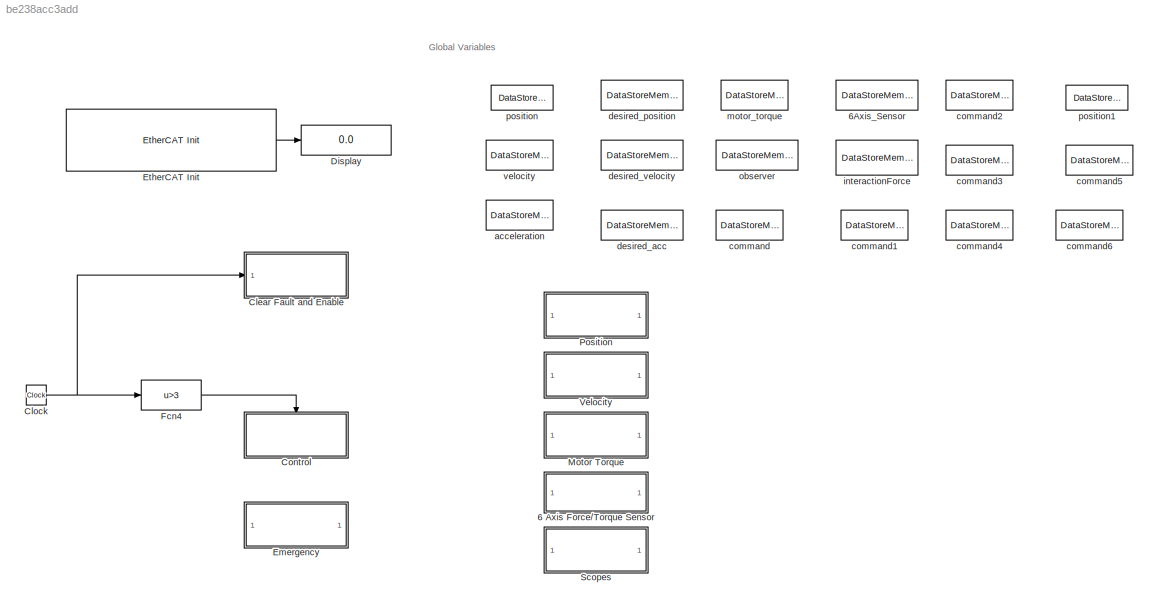
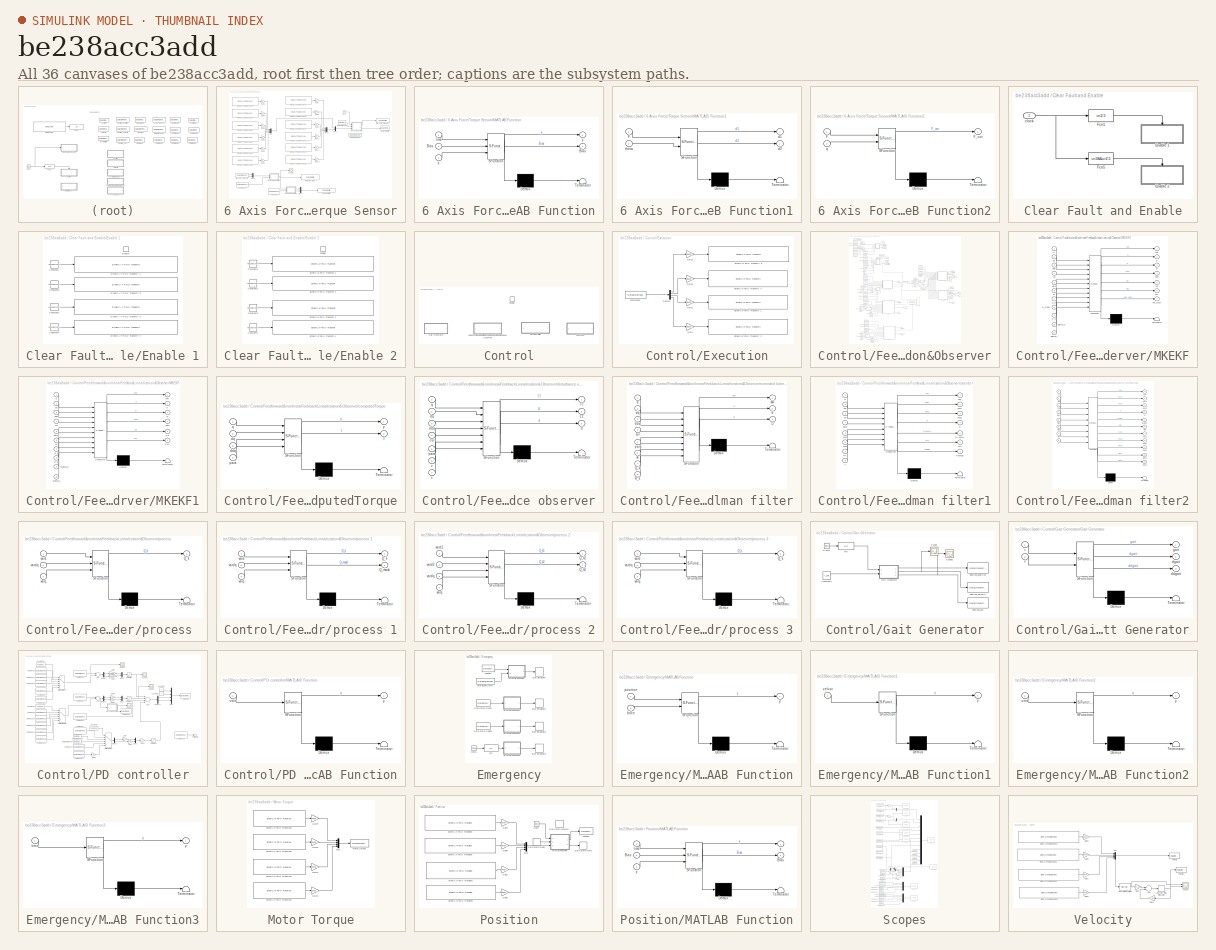
[diagram: thumbnail index - all 36 canvases of the model, root first then tree order]
MODEL slx_be238acc3add
KIND model
CONFIG AbsTol = auto
CONFIG EnableMultiTasking = on
CONFIG FixedStep = ts
CONFIG MaxStep = auto
CONFIG MinStep = auto
CONFIG RelTol = 1e-3
CONFIG SampleTimeConstraint = Unconstrained
CONFIG Solver = FixedStepAuto
CONFIG SolverName = FixedStepAuto
CONFIG StartTime = 0.0
CONFIG StopTime = inf
BLOCK [SubSystem] 6 Axis Force//Torque Sensor
  Ports = []
  RequestExecContextInheritance = off
  Variant = off
BLOCK [Clock] 6 Axis Force//Torque Sensor/Clock
BLOCK [DataStoreMemory] 6 Axis Force//Torque Sensor/Data Store Memory
  DataStoreName = Force_Bias
  InitialValue = zeros(12,1)
  ReadBeforeWriteMsg = warning
  ShowAdditionalParam = off
  WriteAfterReadMsg = warning
  WriteAfterWriteMsg = warning
BLOCK [DataStoreRead] 6 Axis Force//Torque Sensor/Data Store Read
  DataStoreName = Force_Bias
  Ports = [0, 1]
BLOCK [DataStoreWrite] 6 Axis Force//Torque Sensor/Data Store Write
  DataStoreName = Force_Bias
  Ports = [1]
BLOCK [DataStoreWrite] 6 Axis Force//Torque Sensor/Data Store Write1
  DataStoreElements = disturbance(1:2)
  DataStoreName = disturbance
  Ports = [1]
BLOCK [Reference] 6 Axis Force//Torque Sensor/EtherCAT PDO Receive1  REF=xpcethercatlib/EtherCAT PDO Receive
  Ports = [0, 1]
  Priority = 2
  SourceBlock = xpcethercatlib/EtherCAT PDO Receive
  SourceProductBaseCode = XP
  SourceProductName = Simulink Real-Time
  SourceType = xpcethercat_rx_var
BLOCK [Reference] 6 Axis Force//Torque Sensor/EtherCAT PDO Receive10  REF=xpcethercatlib/EtherCAT PDO Receive
  Ports = [0, 1]
  Priority = 2
  SourceBlock = xpcethercatlib/EtherCAT PDO Receive
  SourceProductBaseCode = XP
  SourceProductName = Simulink Real-Time
  SourceType = xpcethercat_rx_var
BLOCK [Reference] 6 Axis Force//Torque Sensor/EtherCAT PDO Receive11  REF=xpcethercatlib/EtherCAT PDO Receive
  Ports = [0, 1]
  Priority = 2
  SourceBlock = xpcethercatlib/EtherCAT PDO Receive
  SourceProductBaseCode = XP
  SourceProductName = Simulink Real-Time
  SourceType = xpcethercat_rx_var
BLOCK [Reference] 6 Axis Force//Torque Sensor/EtherCAT PDO Receive12  REF=xpcethercatlib/EtherCAT PDO Receive
  Ports = [0, 1]
  Priority = 2
  SourceBlock = xpcethercatlib/EtherCAT PDO Receive
  SourceProductBaseCode = XP
  SourceProductName = Simulink Real-Time
  SourceType = xpcethercat_rx_var
BLOCK [Reference] 6 Axis Force//Torque Sensor/EtherCAT PDO Receive2  REF=xpcethercatlib/EtherCAT PDO Receive
  Ports = [0, 1]
  Priority = 2
  SourceBlock = xpcethercatlib/EtherCAT PDO Receive
  SourceProductBaseCode = XP
  SourceProductName = Simulink Real-Time
  SourceType = xpcethercat_rx_var
BLOCK [Reference] 6 Axis Force//Torque Sensor/EtherCAT PDO Receive3  REF=xpcethercatlib/EtherCAT PDO Receive
  Ports = [0, 1]
  Priority = 2
  SourceBlock = xpcethercatlib/EtherCAT PDO Receive
  SourceProductBaseCode = XP
  SourceProductName = Simulink Real-Time
  SourceType = xpcethercat_rx_var
BLOCK [Reference] 6 Axis Force//Torque Sensor/EtherCAT PDO Receive4  REF=xpcethercatlib/EtherCAT PDO Receive
  Ports = [0, 1]
  Priority = 2
  SourceBlock = xpcethercatlib/EtherCAT PDO Receive
  SourceProductBaseCode = XP
  SourceProductName = Simulink Real-Time
  SourceType = xpcethercat_rx_var
BLOCK [Reference] 6 Axis Force//Torque Sensor/EtherCAT PDO Receive5  REF=xpcethercatlib/EtherCAT PDO Receive
  Ports = [0, 1]
  Priority = 2
  SourceBlock = xpcethercatlib/EtherCAT PDO Receive
  SourceProductBaseCode = XP
  SourceProductName = Simulink Real-Time
  SourceType = xpcethercat_rx_var
BLOCK [Reference] 6 Axis Force//Torque Sensor/EtherCAT PDO Receive6  REF=xpcethercatlib/EtherCAT PDO Receive
  Ports = [0, 1]
  Priority = 2
  SourceBlock = xpcethercatlib/EtherCAT PDO Receive
  SourceProductBaseCode = XP
  SourceProductName = Simulink Real-Time
  SourceType = xpcethercat_rx_var
BLOCK [Reference] 6 Axis Force//Torque Sensor/EtherCAT PDO Receive7  REF=xpcethercatlib/EtherCAT PDO Receive
  Ports = [0, 1]
  Priority = 2
  SourceBlock = xpcethercatlib/EtherCAT PDO Receive
  SourceProductBaseCode = XP
  SourceProductName = Simulink Real-Time
  SourceType = xpcethercat_rx_var
BLOCK [Reference] 6 Axis Force//Torque Sensor/EtherCAT PDO Receive8  REF=xpcethercatlib/EtherCAT PDO Receive
  Ports = [0, 1]
  Priority = 2
  SourceBlock = xpcethercatlib/EtherCAT PDO Receive
  SourceProductBaseCode = XP
  SourceProductName = Simulink Real-Time
  SourceType = xpcethercat_rx_var
BLOCK [Reference] 6 Axis Force//Torque Sensor/EtherCAT PDO Receive9  REF=xpcethercatlib/EtherCAT PDO Receive
  Ports = [0, 1]
  Priority = 2
  SourceBlock = xpcethercatlib/EtherCAT PDO Receive
  SourceProductBaseCode = XP
  SourceProductName = Simulink Real-Time
  SourceType = xpcethercat_rx_var
BLOCK [Gain] 6 Axis Force//Torque Sensor/Gain1
  OutDataTypeStr = double
  ParamDataTypeStr = Inherit: Inherit via internal rule
  SaturateOnIntegerOverflow = off
BLOCK [Gain] 6 Axis Force//Torque Sensor/Gain10
  OutDataTypeStr = double
  ParamDataTypeStr = Inherit: Inherit via internal rule
  SaturateOnIntegerOverflow = off
BLOCK [Gain] 6 Axis Force//Torque Sensor/Gain11
  OutDataTypeStr = double
  ParamDataTypeStr = Inherit: Inherit via internal rule
  SaturateOnIntegerOverflow = off
BLOCK [Gain] 6 Axis Force//Torque Sensor/Gain12
  OutDataTypeStr = double
  ParamDataTypeStr = Inherit: Inherit via internal rule
  SaturateOnIntegerOverflow = off
BLOCK [Gain] 6 Axis Force//Torque Sensor/Gain2
  OutDataTypeStr = double
  ParamDataTypeStr = Inherit: Inherit via internal rule
  SaturateOnIntegerOverflow = off
BLOCK [Gain] 6 Axis Force//Torque Sensor/Gain3
  OutDataTypeStr = double
  ParamDataTypeStr = Inherit: Inherit via internal rule
  SaturateOnIntegerOverflow = off
BLOCK [Gain] 6 Axis Force//Torque Sensor/Gain4
  OutDataTypeStr = double
  ParamDataTypeStr = Inherit: Inherit via internal rule
  SaturateOnIntegerOverflow = off
BLOCK [Gain] 6 Axis Force//Torque Sensor/Gain5
  OutDataTypeStr = double
  ParamDataTypeStr = Inherit: Inherit via internal rule
  SaturateOnIntegerOverflow = off
BLOCK [Gain] 6 Axis Force//Torque Sensor/Gain6
  OutDataTypeStr = double
  ParamDataTypeStr = Inherit: Inherit via internal rule
  SaturateOnIntegerOverflow = off
BLOCK [Gain] 6 Axis Force//Torque Sensor/Gain7
  OutDataTypeStr = double
  ParamDataTypeStr = Inherit: Inherit via internal rule
  SaturateOnIntegerOverflow = off
BLOCK [Gain] 6 Axis Force//Torque Sensor/Gain8
  OutDataTypeStr = double
  ParamDataTypeStr = Inherit: Inherit via internal rule
  SaturateOnIntegerOverflow = off
BLOCK [Gain] 6 Axis Force//Torque Sensor/Gain9
  OutDataTypeStr = double
  ParamDataTypeStr = Inherit: Inherit via internal rule
  SaturateOnIntegerOverflow = off
BLOCK [SubSystem] 6 Axis Force//Torque Sensor/MATLAB Function
  ErrorFcn = Stateflow.Translate.translate
  PermitHierarchicalResolution = ExplicitOnly
  Ports = [3, 2]
  RequestExecContextInheritance = off
  SFBlockType = MATLAB Function
  TreatAsAtomicUnit = on
  Variant = off
BLOCK [Demux] 6 Axis Force//Torque Sensor/MATLAB Function/ Demux 
  Outputs = 1
  Ports = [1, 1]
BLOCK [S-Function] 6 Axis Force//Torque Sensor/MATLAB Function/ SFunction 
  EnableBusSupport = on
  FunctionName = sf_sfun
  PortCounts = [3 3]
  Ports = [3, 3]
  SFcnIsStateOwnerBlock = off
  SFunctionDeploymentMode = off
  Tag = Stateflow S-Function Exp 9
BLOCK [Terminator] 6 Axis Force//Torque Sensor/MATLAB Function/ Terminator 
BLOCK [Outport] 6 Axis Force//Torque Sensor/MATLAB Function/Bias
  IconDisplay = Port number
  Port = 2
BLOCK [Inport] 6 Axis Force//Torque Sensor/MATLAB Function/Bias 
  IconDisplay = Port number
  Port = 2
BLOCK [Inport] 6 Axis Force//Torque Sensor/MATLAB Function/time
  IconDisplay = Port number
BLOCK [Outport] 6 Axis Force//Torque Sensor/MATLAB Function/y
  IconDisplay = Port number
BLOCK [Inport] 6 Axis Force//Torque Sensor/MATLAB Function/y 
  IconDisplay = Port number
  Port = 3
BLOCK [SubSystem] 6 Axis Force//Torque Sensor/MATLAB Function1
  ErrorFcn = Stateflow.Translate.translate
  PermitHierarchicalResolution = ExplicitOnly
  Ports = [2, 2]
  RequestExecContextInheritance = off
  SFBlockType = MATLAB Function
  TreatAsAtomicUnit = on
  Variant = off
BLOCK [Demux] 6 Axis Force//Torque Sensor/MATLAB Function1/ Demux 
  Outputs = 1
  Ports = [1, 1]
BLOCK [S-Function] 6 Axis Force//Torque Sensor/MATLAB Function1/ SFunction 
  EnableBusSupport = on
  FunctionName = sf_sfun
  PortCounts = [2 3]
  Ports = [2, 3]
  SFcnIsStateOwnerBlock = off
  SFunctionDeploymentMode = off
  Tag = Stateflow S-Function Exp 3
BLOCK [Terminator] 6 Axis Force//Torque Sensor/MATLAB Function1/ Terminator 
BLOCK [Inport] 6 Axis Force//Torque Sensor/MATLAB Function1/F
  IconDisplay = Port number
BLOCK [Outport] 6 Axis Force//Torque Sensor/MATLAB Function1/d1
  IconDisplay = Port number
BLOCK [Outport] 6 Axis Force//Torque Sensor/MATLAB Function1/d2
  IconDisplay = Port number
  Port = 2
BLOCK [Inport] 6 Axis Force//Torque Sensor/MATLAB Function1/theta
  IconDisplay = Port number
  Port = 2
BLOCK [SubSystem] 6 Axis Force//Torque Sensor/MATLAB Function2
  ErrorFcn = Stateflow.Translate.translate
  PermitHierarchicalResolution = ExplicitOnly
  Ports = [2, 1]
  RequestExecContextInheritance = off
  SFBlockType = MATLAB Function
  TreatAsAtomicUnit = on
  Variant = off
BLOCK [Demux] 6 Axis Force//Torque Sensor/MATLAB Function2/ Demux 
  Outputs = 1
  Ports = [1, 1]
BLOCK [S-Function] 6 Axis Force//Torque Sensor/MATLAB Function2/ SFunction 
  EnableBusSupport = on
  FunctionName = sf_sfun
  PortCounts = [2 2]
  Ports = [2, 2]
  SFcnIsStateOwnerBlock = off
  SFunctionDeploymentMode = off
  Tag = Stateflow S-Function Exp 4
BLOCK [Terminator] 6 Axis Force//Torque Sensor/MATLAB Function2/ Terminator 
BLOCK [Inport] 6 Axis Force//Torque Sensor/MATLAB Function2/F
  IconDisplay = Port number
BLOCK [Outport] 6 Axis Force//Torque Sensor/MATLAB Function2/F_cor
  IconDisplay = Port number
BLOCK [Inport] 6 Axis Force//Torque Sensor/MATLAB Function2/q
  IconDisplay = Port number
  Port = 2
BLOCK [Mux] 6 Axis Force//Torque Sensor/Mux
  DisplayOption = bar
  Inputs = 6
  Ports = [6, 1]
BLOCK [Mux] 6 Axis Force//Torque Sensor/Mux1
  DisplayOption = bar
  Inputs = 6
  Ports = [6, 1]
BLOCK [Mux] 6 Axis Force//Torque Sensor/Mux2
  DisplayOption = bar
  Inputs = 2
  Ports = [2, 1]
BLOCK [Mux] 6 Axis Force//Torque Sensor/Mux3
  DisplayOption = bar
  Inputs = 2
  Ports = [2, 1]
BLOCK [Mux] 6 Axis Force//Torque Sensor/Mux4
  DisplayOption = bar
  Inputs = 2
  Ports = [2, 1]
BLOCK [Scope] 6 Axis Force//Torque Sensor/Scope1
  NumInputPorts = 1
  Ports = [1]
  ScopeSpecificationString = Simulink.scopes.TimeScopeBlockCfg('CurrentConfiguration', extmgr.ConfigurationSet(extmgr.Configuration('Core','General UI',true),extmgr.Configuration('Core','Source UI',true),extmgr.Configuration('Sources','WiredSimulink',true,'DataLoggingVariableName','ScopeData2'),extmgr.Configuration('Visuals','Time Domain',true,'SerializedDisplays',{struct('MinYLimReal','-4.86972','MaxYLimReal','4.47659','YLab...<+1511ch>
BLOCK [DataStoreWrite] 6 Axis Force//Torque Sensor/Six_Axis_Sensor
  DataStoreName = Six_Axis_Sensor
  Ports = [1]
BLOCK [DataStoreRead] 6 Axis Force//Torque Sensor/Six_Axis_Sensor1
  DataStoreElements = Six_Axis_Sensor(1:2)#Six_Axis_Sensor(7:8)
  DataStoreName = Six_Axis_Sensor
  Ports = [0, 2]
BLOCK [DataStoreRead] 6 Axis Force//Torque Sensor/command1
  DataStoreElements = position(3:4)
  DataStoreName = position
  Ports = [0, 1]
BLOCK [DataStoreRead] 6 Axis Force//Torque Sensor/command3
  DataStoreElements = position(4)
  DataStoreName = position
  Ports = [0, 1]
BLOCK [DataStoreWrite] 6 Axis Force//Torque Sensor/interaction_force
  DataStoreElements = interaction_force(:)
  DataStoreName = interaction_force
  Ports = [1]
BLOCK [DataStoreMemory] 6Axis_Sensor
  DataStoreName = Six_Axis_Sensor
  InitialValue = zeros(12,1)
  ReadBeforeWriteMsg = warning
  ShowAdditionalParam = off
  WriteAfterReadMsg = warning
  WriteAfterWriteMsg = warning
BLOCK [SubSystem] Clear Fault and Enable
  Ports = [1]
  RequestExecContextInheritance = off
  TreatAsAtomicUnit = on
  Variant = off
BLOCK [SubSystem] Clear Fault and Enable/Enable 1
  Ports = [0, 0, 1]
  RequestExecContextInheritance = off
  TreatAsAtomicUnit = on
  Variant = off
BLOCK [Constant] Clear Fault and Enable/Enable 1/Constant1
  OutDataTypeStr = uint16
  Value = hex2dec('8F')
BLOCK [Constant] Clear Fault and Enable/Enable 1/Constant2
  OutDataTypeStr = uint16
  Value = hex2dec('8F')
BLOCK [Constant] Clear Fault and Enable/Enable 1/Constant3
  OutDataTypeStr = uint16
  Value = hex2dec('8F')
BLOCK [Constant] Clear Fault and Enable/Enable 1/Constant4
  OutDataTypeStr = uint16
  Value = hex2dec('8F')
BLOCK [EnablePort] Clear Fault and Enable/Enable 1/Enable
  Ports = []
BLOCK [Reference] Clear Fault and Enable/Enable 1/EtherCAT PDO Transmit 1  REF=xpcethercatlib/EtherCAT PDO Transmit 
  Ports = [1]
  Priority = 3
  SourceBlock = xpcethercatlib/EtherCAT PDO Transmit
  SourceProductBaseCode = XP
  SourceProductName = Simulink Real-Time
  SourceType = xpcethercat_tx_var
BLOCK [Reference] Clear Fault and Enable/Enable 1/EtherCAT PDO Transmit 2  REF=xpcethercatlib/EtherCAT PDO Transmit 
  Ports = [1]
  Priority = 3
  SourceBlock = xpcethercatlib/EtherCAT PDO Transmit
  SourceProductBaseCode = XP
  SourceProductName = Simulink Real-Time
  SourceType = xpcethercat_tx_var
BLOCK [Reference] Clear Fault and Enable/Enable 1/EtherCAT PDO Transmit 3  REF=xpcethercatlib/EtherCAT PDO Transmit 
  Ports = [1]
  Priority = 3
  SourceBlock = xpcethercatlib/EtherCAT PDO Transmit
  SourceProductBaseCode = XP
  SourceProductName = Simulink Real-Time
  SourceType = xpcethercat_tx_var
BLOCK [Reference] Clear Fault and Enable/Enable 1/EtherCAT PDO Transmit 4  REF=xpcethercatlib/EtherCAT PDO Transmit 
  Ports = [1]
  Priority = 3
  SourceBlock = xpcethercatlib/EtherCAT PDO Transmit
  SourceProductBaseCode = XP
  SourceProductName = Simulink Real-Time
  SourceType = xpcethercat_tx_var
BLOCK [SubSystem] Clear Fault and Enable/Enable 2
  Ports = [0, 0, 1]
  RequestExecContextInheritance = off
  TreatAsAtomicUnit = on
  Variant = off
BLOCK [Constant] Clear Fault and Enable/Enable 2/Constant1
  OutDataTypeStr = uint16
  Value = hex2dec('0F')
BLOCK [Constant] Clear Fault and Enable/Enable 2/Constant2
  OutDataTypeStr = uint16
  Value = hex2dec('0F')
BLOCK [Constant] Clear Fault and Enable/Enable 2/Constant3
  OutDataTypeStr = uint16
  Value = hex2dec('0F')
BLOCK [Constant] Clear Fault and Enable/Enable 2/Constant4
  OutDataTypeStr = uint16
  Value = hex2dec('0F')
BLOCK [EnablePort] Clear Fault and Enable/Enable 2/Enable
  Ports = []
BLOCK [Reference] Clear Fault and Enable/Enable 2/EtherCAT PDO Transmit 1  REF=xpcethercatlib/EtherCAT PDO Transmit 
  Ports = [1]
  Priority = 3
  SourceBlock = xpcethercatlib/EtherCAT PDO Transmit
  SourceProductBaseCode = XP
  SourceProductName = Simulink Real-Time
  SourceType = xpcethercat_tx_var
BLOCK [Reference] Clear Fault and Enable/Enable 2/EtherCAT PDO Transmit 2  REF=xpcethercatlib/EtherCAT PDO Transmit 
  Ports = [1]
  Priority = 3
  SourceBlock = xpcethercatlib/EtherCAT PDO Transmit
  SourceProductBaseCode = XP
  SourceProductName = Simulink Real-Time
  SourceType = xpcethercat_tx_var
BLOCK [Reference] Clear Fault and Enable/Enable 2/EtherCAT PDO Transmit 3  REF=xpcethercatlib/EtherCAT PDO Transmit 
  Ports = [1]
  Priority = 3
  SourceBlock = xpcethercatlib/EtherCAT PDO Transmit
  SourceProductBaseCode = XP
  SourceProductName = Simulink Real-Time
  SourceType = xpcethercat_tx_var
BLOCK [Reference] Clear Fault and Enable/Enable 2/EtherCAT PDO Transmit 4  REF=xpcethercatlib/EtherCAT PDO Transmit 
  Ports = [1]
  Priority = 3
  SourceBlock = xpcethercatlib/EtherCAT PDO Transmit
  SourceProductBaseCode = XP
  SourceProductName = Simulink Real-Time
  SourceType = xpcethercat_tx_var
BLOCK [Fcn] Clear Fault and Enable/Fcn1
  Expr = u<2.5
BLOCK [Fcn] Clear Fault and Enable/Fcn5
  Expr = u<3&&u>2.5
BLOCK [Inport] Clear Fault and Enable/clock
  IconDisplay = Port number
BLOCK [Clock] Clock
BLOCK [SubSystem] Control
  Ports = [0, 0, 1]
  RequestExecContextInheritance = off
  TreatAsAtomicUnit = on
  Variant = off
BLOCK [EnablePort] Control/Enable
  Ports = []
BLOCK [SubSystem] Control/Execution
  Ports = []
  RequestExecContextInheritance = off
  Variant = off
BLOCK [Demux] Control/Execution/Demux
  DisplayOption = bar
  Ports = [1, 4]
BLOCK [Reference] Control/Execution/EtherCAT PDO Transmit 1  REF=xpcethercatlib/EtherCAT PDO Transmit 
  Ports = [1]
  Priority = 3
  SourceBlock = xpcethercatlib/EtherCAT PDO Transmit
  SourceProductBaseCode = XP
  SourceProductName = Simulink Real-Time
  SourceType = xpcethercat_tx_var
BLOCK [Reference] Control/Execution/EtherCAT PDO Transmit 2  REF=xpcethercatlib/EtherCAT PDO Transmit 
  Ports = [1]
  Priority = 3
  SourceBlock = xpcethercatlib/EtherCAT PDO Transmit
  SourceProductBaseCode = XP
  SourceProductName = Simulink Real-Time
  SourceType = xpcethercat_tx_var
BLOCK [Reference] Control/Execution/EtherCAT PDO Transmit 3  REF=xpcethercatlib/EtherCAT PDO Transmit 
  Ports = [1]
  Priority = 3
  SourceBlock = xpcethercatlib/EtherCAT PDO Transmit
  SourceProductBaseCode = XP
  SourceProductName = Simulink Real-Time
  SourceType = xpcethercat_tx_var
BLOCK [Reference] Control/Execution/EtherCAT PDO Transmit 4  REF=xpcethercatlib/EtherCAT PDO Transmit 
  Ports = [1]
  Priority = 3
  SourceBlock = xpcethercatlib/EtherCAT PDO Transmit
  SourceProductBaseCode = XP
  SourceProductName = Simulink Real-Time
  SourceType = xpcethercat_tx_var
BLOCK [Gain] Control/Execution/Gain
  Gain = 1/0.939*1000/Kg
  OutDataTypeStr = int16
  ParamDataTypeStr = Inherit: Inherit via internal rule
  SaturateOnIntegerOverflow = off
BLOCK [Gain] Control/Execution/Gain1
  Gain = 1/0.939*1000/Kg
  OutDataTypeStr = int16
  ParamDataTypeStr = Inherit: Inherit via internal rule
  SaturateOnIntegerOverflow = off
BLOCK [Gain] Control/Execution/Gain2
  Gain = 1/0.939*1000/Kg
  OutDataTypeStr = int16
  ParamDataTypeStr = Inherit: Inherit via internal rule
  SaturateOnIntegerOverflow = off
BLOCK [Gain] Control/Execution/Gain3
  Gain = 1/0.939*1000/Kg
  OutDataTypeStr = int16
  ParamDataTypeStr = Inherit: Inherit via internal rule
  SaturateOnIntegerOverflow = off
BLOCK [DataStoreRead] Control/Execution/command1
  DataStoreName = command
  Ports = [0, 1]
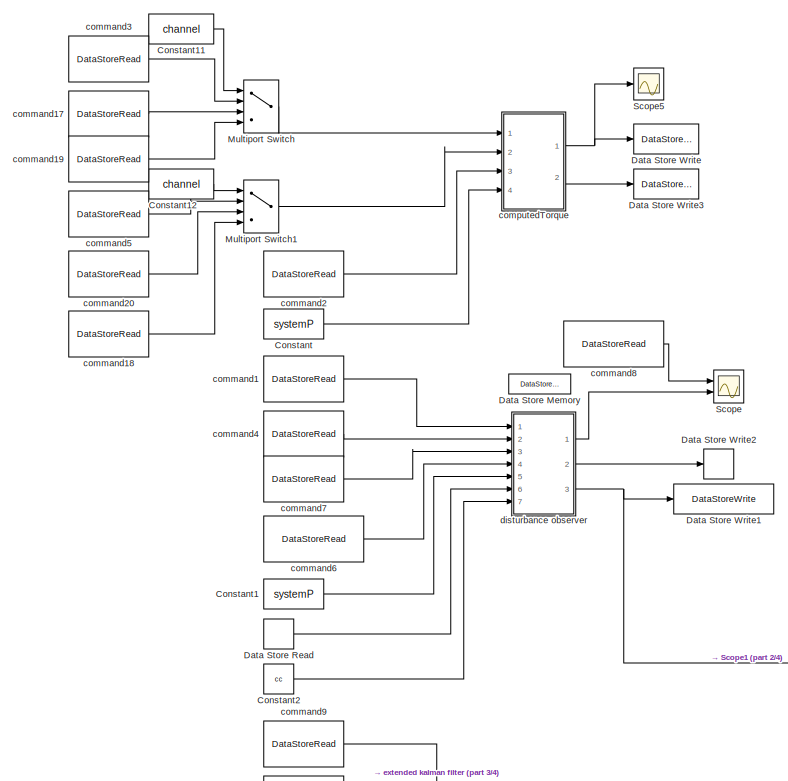
[diagram: Control/Feedforward&nonlinearFeekbackLinearlization&Observer - part 1/4, top left region]
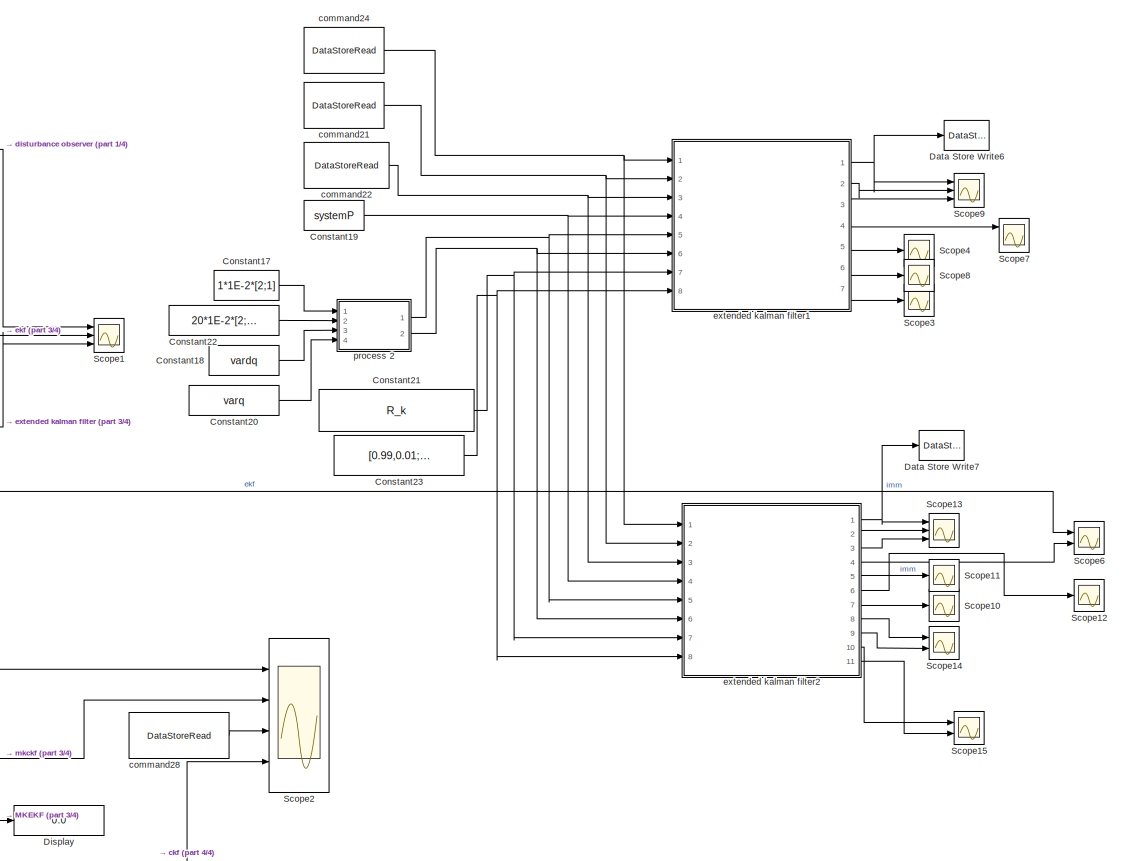
[diagram: Control/Feedforward&nonlinearFeekbackLinearlization&Observer - part 2/4, middle right region]
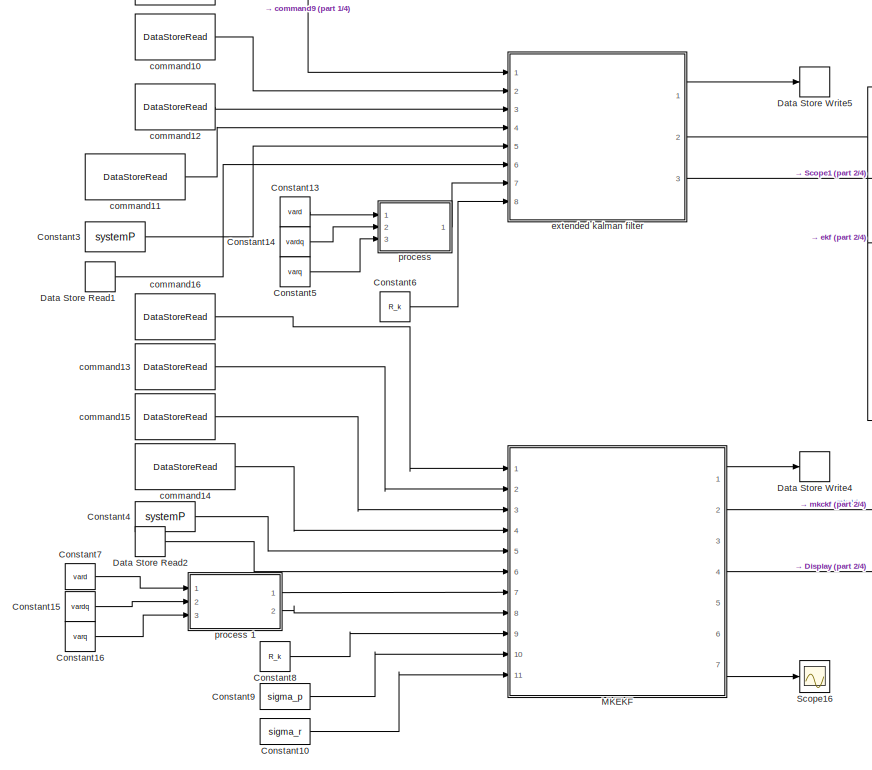
[diagram: Control/Feedforward&nonlinearFeekbackLinearlization&Observer - part 3/4, middle left region]
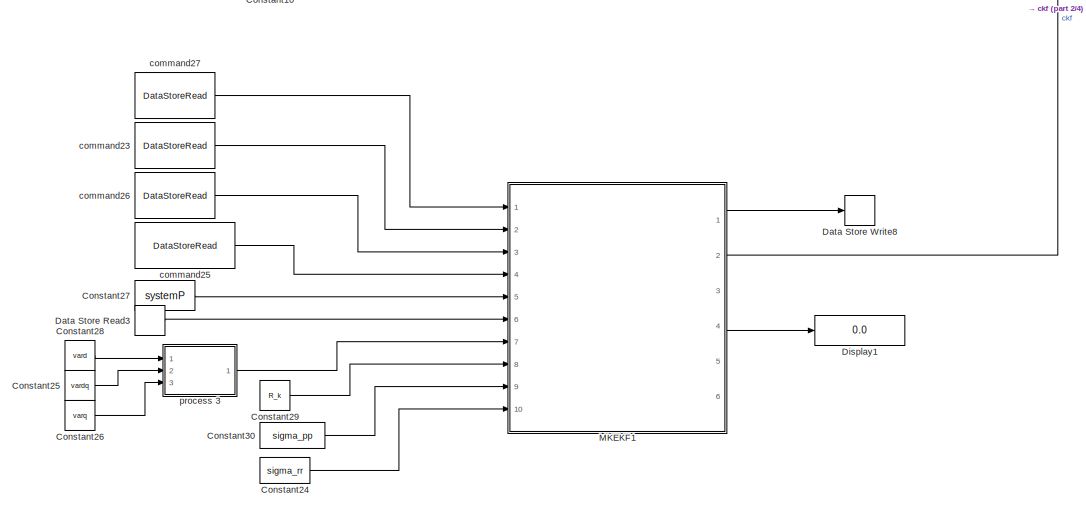
[diagram: Control/Feedforward&nonlinearFeekbackLinearlization&Observer - part 4/4, bottom left region]
BLOCK [SubSystem] Control/Feedforward&nonlinearFeekbackLinearlization&Observer
  Ports = []
  RequestExecContextInheritance = off
  Variant = off
BLOCK [Constant] Control/Feedforward&nonlinearFeekbackLinearlization&Observer/Constant
  Value = systemP
BLOCK [Constant] Control/Feedforward&nonlinearFeekbackLinearlization&Observer/Constant1
  Value = systemP
BLOCK [Constant] Control/Feedforward&nonlinearFeekbackLinearlization&Observer/Constant10
  Value = sigma_r
BLOCK [Constant] Control/Feedforward&nonlinearFeekbackLinearlization&Observer/Constant11
  Value = channel
BLOCK [Constant] Control/Feedforward&nonlinearFeekbackLinearlization&Observer/Constant12
  Value = channel
BLOCK [Constant] Control/Feedforward&nonlinearFeekbackLinearlization&Observer/Constant13
  Value = vard
BLOCK [Constant] Control/Feedforward&nonlinearFeekbackLinearlization&Observer/Constant14
  Value = vardq
BLOCK [Constant] Control/Feedforward&nonlinearFeekbackLinearlization&Observer/Constant15
  Value = vardq
BLOCK [Constant] Control/Feedforward&nonlinearFeekbackLinearlization&Observer/Constant16
  Value = varq
BLOCK [Constant] Control/Feedforward&nonlinearFeekbackLinearlization&Observer/Constant17
  Value = 1*1E-2*[2;1]
BLOCK [Constant] Control/Feedforward&nonlinearFeekbackLinearlization&Observer/Constant18
  Value = vardq
BLOCK [Constant] Control/Feedforward&nonlinearFeekbackLinearlization&Observer/Constant19
  Value = systemP
BLOCK [Constant] Control/Feedforward&nonlinearFeekbackLinearlization&Observer/Constant2
  Value = cc
BLOCK [Constant] Control/Feedforward&nonlinearFeekbackLinearlization&Observer/Constant20
  Value = varq
BLOCK [Constant] Control/Feedforward&nonlinearFeekbackLinearlization&Observer/Constant21
  Value = R_k
BLOCK [Constant] Control/Feedforward&nonlinearFeekbackLinearlization&Observer/Constant22
  Value = 20*1E-2*[2;1]
BLOCK [Constant] Control/Feedforward&nonlinearFeekbackLinearlization&Observer/Constant23
  Value = [0.99,0.01;0.01,0.99]
BLOCK [Constant] Control/Feedforward&nonlinearFeekbackLinearlization&Observer/Constant24
  Value = sigma_rr
BLOCK [Constant] Control/Feedforward&nonlinearFeekbackLinearlization&Observer/Constant25
  Value = vardq
BLOCK [Constant] Control/Feedforward&nonlinearFeekbackLinearlization&Observer/Constant26
  Value = varq
BLOCK [Constant] Control/Feedforward&nonlinearFeekbackLinearlization&Observer/Constant27
  Value = systemP
BLOCK [Constant] Control/Feedforward&nonlinearFeekbackLinearlization&Observer/Constant28
  Value = vard
BLOCK [Constant] Control/Feedforward&nonlinearFeekbackLinearlization&Observer/Constant29
  Value = R_k
BLOCK [Constant] Control/Feedforward&nonlinearFeekbackLinearlization&Observer/Constant3
  Value = systemP
BLOCK [Constant] Control/Feedforward&nonlinearFeekbackLinearlization&Observer/Constant30
  Value = sigma_pp
BLOCK [Constant] Control/Feedforward&nonlinearFeekbackLinearlization&Observer/Constant4
  Value = systemP
BLOCK [Constant] Control/Feedforward&nonlinearFeekbackLinearlization&Observer/Constant5
  Value = varq
BLOCK [Constant] Control/Feedforward&nonlinearFeekbackLinearlization&Observer/Constant6
  Value = R_k
BLOCK [Constant] Control/Feedforward&nonlinearFeekbackLinearlization&Observer/Constant7
  Value = vard
BLOCK [Constant] Control/Feedforward&nonlinearFeekbackLinearlization&Observer/Constant8
  Value = R_k
BLOCK [Constant] Control/Feedforward&nonlinearFeekbackLinearlization&Observer/Constant9
  Value = sigma_p
BLOCK [DataStoreMemory] Control/Feedforward&nonlinearFeekbackLinearlization&Observer/Data Store Memory
  DataStoreName = z
  InitialValue = zeros(2,1)
  ReadBeforeWriteMsg = warning
  ShowAdditionalParam = off
  WriteAfterReadMsg = warning
  WriteAfterWriteMsg = warning
BLOCK [DataStoreRead] Control/Feedforward&nonlinearFeekbackLinearlization&Observer/Data Store Read
  DataStoreName = z
  Ports = [0, 1]
BLOCK [DataStoreRead] Control/Feedforward&nonlinearFeekbackLinearlization&Observer/Data Store Read1
  DataStoreName = xk
  Ports = [0, 1]
BLOCK [DataStoreRead] Control/Feedforward&nonlinearFeekbackLinearlization&Observer/Data Store Read2
  DataStoreName = mkxk
  Ports = [0, 1]
BLOCK [DataStoreRead] Control/Feedforward&nonlinearFeekbackLinearlization&Observer/Data Store Read3
  DataStoreName = cxk
  Ports = [0, 1]
BLOCK [DataStoreWrite] Control/Feedforward&nonlinearFeekbackLinearlization&Observer/Data Store Write
  DataStoreName = observer
  Ports = [1]
BLOCK [DataStoreWrite] Control/Feedforward&nonlinearFeekbackLinearlization&Observer/Data Store Write1
  DataStoreElements = disturbance(3:4)
  DataStoreName = disturbance
  Ports = [1]
BLOCK [DataStoreWrite] Control/Feedforward&nonlinearFeekbackLinearlization&Observer/Data Store Write2
  DataStoreName = z
  Ports = [1]
BLOCK [DataStoreWrite] Control/Feedforward&nonlinearFeekbackLinearlization&Observer/Data Store Write3
  DataStoreName = friction
  Ports = [1]
BLOCK [DataStoreWrite] Control/Feedforward&nonlinearFeekbackLinearlization&Observer/Data Store Write4
  DataStoreName = mkxk
  Ports = [1]
BLOCK [DataStoreWrite] Control/Feedforward&nonlinearFeekbackLinearlization&Observer/Data Store Write5
  DataStoreName = xk
  Ports = [1]
BLOCK [DataStoreWrite] Control/Feedforward&nonlinearFeekbackLinearlization&Observer/Data Store Write6
  Commented = on
  DataStoreName = immxk
  Ports = [1]
BLOCK [DataStoreWrite] Control/Feedforward&nonlinearFeekbackLinearlization&Observer/Data Store Write7
  DataStoreName = immxk
  Ports = [1]
BLOCK [DataStoreWrite] Control/Feedforward&nonlinearFeekbackLinearlization&Observer/Data Store Write8
  DataStoreName = cxk
  Ports = [1]
BLOCK [Display] Control/Feedforward&nonlinearFeekbackLinearlization&Observer/Display
  Decimation = 1
  Ports = [1]
BLOCK [Display] Control/Feedforward&nonlinearFeekbackLinearlization&Observer/Display1
  Decimation = 1
  Ports = [1]
BLOCK [SubSystem] Control/Feedforward&nonlinearFeekbackLinearlization&Observer/MKEKF
  ErrorFcn = Stateflow.Translate.translate
  PermitHierarchicalResolution = ExplicitOnly
  Ports = [11, 7]
  RequestExecContextInheritance = off
  SFBlockType = MATLAB Function
  TreatAsAtomicUnit = on
  Variant = off
BLOCK [Demux] Control/Feedforward&nonlinearFeekbackLinearlization&Observer/MKEKF/ Demux 
  Outputs = 1
  Ports = [1, 1]
BLOCK [S-Function] Control/Feedforward&nonlinearFeekbackLinearlization&Observer/MKEKF/ SFunction 
  EnableBusSupport = on
  FunctionName = sf_sfun
  PortCounts = [11 8]
  Ports = [11, 8]
  SFcnIsStateOwnerBlock = off
  SFunctionDeploymentMode = off
  Tag = Stateflow S-Function Exp 8
BLOCK [Terminator] Control/Feedforward&nonlinearFeekbackLinearlization&Observer/MKEKF/ Terminator 
BLOCK [Outport] Control/Feedforward&nonlinearFeekbackLinearlization&Observer/MKEKF/D
  IconDisplay = Port number
  Port = 3
BLOCK [Outport] Control/Feedforward&nonlinearFeekbackLinearlization&Observer/MKEKF/Pk1
  IconDisplay = Port number
  Port = 6
BLOCK [Inport] Control/Feedforward&nonlinearFeekbackLinearlization&Observer/MKEKF/Q_k
  IconDisplay = Port number
  Port = 7
BLOCK [Inport] Control/Feedforward&nonlinearFeekbackLinearlization&Observer/MKEKF/Q_maxk
  IconDisplay = Port number
  Port = 8
BLOCK [Inport] Control/Feedforward&nonlinearFeekbackLinearlization&Observer/MKEKF/R_k
  IconDisplay = Port number
  Port = 9
BLOCK [Outport] Control/Feedforward&nonlinearFeekbackLinearlization&Observer/MKEKF/XE
  IconDisplay = Port number
  Port = 5
BLOCK [Inport] Control/Feedforward&nonlinearFeekbackLinearlization&Observer/MKEKF/cur
  IconDisplay = Port number
  Port = 4
BLOCK [Outport] Control/Feedforward&nonlinearFeekbackLinearlization&Observer/MKEKF/d
  IconDisplay = Port number
  Port = 2
BLOCK [Inport] Control/Feedforward&nonlinearFeekbackLinearlization&Observer/MKEKF/ddq
  IconDisplay = Port number
  Port = 3
BLOCK [Inport] Control/Feedforward&nonlinearFeekbackLinearlization&Observer/MKEKF/dq
  IconDisplay = Port number
  Port = 2
BLOCK [Outport] Control/Feedforward&nonlinearFeekbackLinearlization&Observer/MKEKF/num
  IconDisplay = Port number
  Port = 4
BLOCK [Inport] Control/Feedforward&nonlinearFeekbackLinearlization&Observer/MKEKF/para
  IconDisplay = Port number
  Port = 5
BLOCK [Inport] Control/Feedforward&nonlinearFeekbackLinearlization&Observer/MKEKF/q
  IconDisplay = Port number
BLOCK [Inport] Control/Feedforward&nonlinearFeekbackLinearlization&Observer/MKEKF/sigma_p
  IconDisplay = Port number
  Port = 10
BLOCK [Inport] Control/Feedforward&nonlinearFeekbackLinearlization&Observer/MKEKF/sigma_r
  IconDisplay = Port number
  Port = 11
BLOCK [Outport] Control/Feedforward&nonlinearFeekbackLinearlization&Observer/MKEKF/vec_recp
  IconDisplay = Port number
  Port = 7
BLOCK [Inport] Control/Feedforward&nonlinearFeekbackLinearlization&Observer/MKEKF/xk
  IconDisplay = Port number
  Port = 6
BLOCK [Outport] Control/Feedforward&nonlinearFeekbackLinearlization&Observer/MKEKF/xkk
  IconDisplay = Port number
BLOCK [SubSystem] Control/Feedforward&nonlinearFeekbackLinearlization&Observer/MKEKF1
  ErrorFcn = Stateflow.Translate.translate
  PermitHierarchicalResolution = ExplicitOnly
  Ports = [10, 6]
  RequestExecContextInheritance = off
  SFBlockType = MATLAB Function
  TreatAsAtomicUnit = on
  Variant = off
BLOCK [Demux] Control/Feedforward&nonlinearFeekbackLinearlization&Observer/MKEKF1/ Demux 
  Outputs = 1
  Ports = [1, 1]
BLOCK [S-Function] Control/Feedforward&nonlinearFeekbackLinearlization&Observer/MKEKF1/ SFunction 
  EnableBusSupport = on
  FunctionName = sf_sfun
  PortCounts = [10 7]
  Ports = [10, 7]
  SFcnIsStateOwnerBlock = off
  SFunctionDeploymentMode = off
  Tag = Stateflow S-Function Exp 19
BLOCK [Terminator] Control/Feedforward&nonlinearFeekbackLinearlization&Observer/MKEKF1/ Terminator 
BLOCK [Outport] Control/Feedforward&nonlinearFeekbackLinearlization&Observer/MKEKF1/D
  IconDisplay = Port number
  Port = 3
BLOCK [Outport] Control/Feedforward&nonlinearFeekbackLinearlization&Observer/MKEKF1/Pk1
  IconDisplay = Port number
  Port = 6
BLOCK [Inport] Control/Feedforward&nonlinearFeekbackLinearlization&Observer/MKEKF1/Q_k
  IconDisplay = Port number
  Port = 7
BLOCK [Inport] Control/Feedforward&nonlinearFeekbackLinearlization&Observer/MKEKF1/R_k
  IconDisplay = Port number
  Port = 8
BLOCK [Outport] Control/Feedforward&nonlinearFeekbackLinearlization&Observer/MKEKF1/XE
  IconDisplay = Port number
  Port = 5
BLOCK [Inport] Control/Feedforward&nonlinearFeekbackLinearlization&Observer/MKEKF1/cur
  IconDisplay = Port number
  Port = 4
BLOCK [Outport] Control/Feedforward&nonlinearFeekbackLinearlization&Observer/MKEKF1/d
  IconDisplay = Port number
  Port = 2
BLOCK [Inport] Control/Feedforward&nonlinearFeekbackLinearlization&Observer/MKEKF1/ddq
  IconDisplay = Port number
  Port = 3
BLOCK [Inport] Control/Feedforward&nonlinearFeekbackLinearlization&Observer/MKEKF1/dq
  IconDisplay = Port number
  Port = 2
BLOCK [Outport] Control/Feedforward&nonlinearFeekbackLinearlization&Observer/MKEKF1/num
  IconDisplay = Port number
  Port = 4
BLOCK [Inport] Control/Feedforward&nonlinearFeekbackLinearlization&Observer/MKEKF1/para
  IconDisplay = Port number
  Port = 5
BLOCK [Inport] Control/Feedforward&nonlinearFeekbackLinearlization&Observer/MKEKF1/q
  IconDisplay = Port number
BLOCK [Inport] Control/Feedforward&nonlinearFeekbackLinearlization&Observer/MKEKF1/sigma_p
  IconDisplay = Port number
  Port = 9
BLOCK [Inport] Control/Feedforward&nonlinearFeekbackLinearlization&Observer/MKEKF1/sigma_r
  IconDisplay = Port number
  Port = 10
BLOCK [Inport] Control/Feedforward&nonlinearFeekbackLinearlization&Observer/MKEKF1/xk
  IconDisplay = Port number
  Port = 6
BLOCK [Outport] Control/Feedforward&nonlinearFeekbackLinearlization&Observer/MKEKF1/xkk
  IconDisplay = Port number
BLOCK [MultiPortSwitch] Control/Feedforward&nonlinearFeekbackLinearlization&Observer/Multiport Switch
  InputSameDT = off
  Ports = [4, 1]
  SaturateOnIntegerOverflow = off
BLOCK [MultiPortSwitch] Control/Feedforward&nonlinearFeekbackLinearlization&Observer/Multiport Switch1
  InputSameDT = off
  Ports = [4, 1]
  SaturateOnIntegerOverflow = off
BLOCK [Scope] Control/Feedforward&nonlinearFeekbackLinearlization&Observer/Scope
  NumInputPorts = 2
  Ports = [2]
  ScopeSpecificationString = Simulink.scopes.TimeScopeBlockCfg('CurrentConfiguration', extmgr.ConfigurationSet(extmgr.Configuration('Core','General UI',true),extmgr.Configuration('Core','Source UI',true),extmgr.Configuration('Sources','WiredSimulink',true,'DataLoggingVariableName','ScopeData1'),extmgr.Configuration('Visuals','Time Domain',true,'SerializedDisplays',{struct('MinYLimReal','-55.25943','MaxYLimReal','72.16121','YL...<+1515ch>
BLOCK [Scope] Control/Feedforward&nonlinearFeekbackLinearlization&Observer/Scope1
  NumInputPorts = 3
  Ports = [3]
  ScopeSpecificationString = Simulink.scopes.TimeScopeBlockCfg('CurrentConfiguration', extmgr.ConfigurationSet(extmgr.Configuration('Core','General UI',true),extmgr.Configuration('Core','Source UI',true),extmgr.Configuration('Sources','WiredSimulink',true,'DataLoggingVariableName','ScopeData1'),extmgr.Configuration('Visuals','Time Domain',true,'SerializedDisplays',{struct('MinYLimReal','-17.57682','MaxYLimReal','20.92626','YL...<+1730ch>
BLOCK [Scope] Control/Feedforward&nonlinearFeekbackLinearlization&Observer/Scope10
  NumInputPorts = 1
  Ports = [1]
  ScopeSpecificationString = Simulink.scopes.TimeScopeBlockCfg('CurrentConfiguration', extmgr.ConfigurationSet(extmgr.Configuration('Core','General UI',true),extmgr.Configuration('Core','Source UI',true),extmgr.Configuration('Sources','WiredSimulink',true,'DataLoggingVariableName','ScopeData7'),extmgr.Configuration('Visuals','Time Domain',true,'SerializedDisplays',{struct('MinYLimReal','-0.11195','MaxYLimReal','0.12181','YLab...<+1878ch>
BLOCK [Scope] Control/Feedforward&nonlinearFeekbackLinearlization&Observer/Scope11
  NumInputPorts = 1
  Ports = [1]
  ScopeSpecificationString = Simulink.scopes.TimeScopeBlockCfg('CurrentConfiguration', extmgr.ConfigurationSet(extmgr.Configuration('Core','General UI',true),extmgr.Configuration('Core','Source UI',true),extmgr.Configuration('Sources','WiredSimulink',true,'DataLoggingVariableName','ScopeData8'),extmgr.Configuration('Visuals','Time Domain',true,'SerializedDisplays',{struct('MinYLimReal','-3349893.80299','MaxYLimReal','30149044...<+1588ch>
BLOCK [Scope] Control/Feedforward&nonlinearFeekbackLinearlization&Observer/Scope12
  NumInputPorts = 1
  Ports = [1]
  ScopeSpecificationString = Simulink.scopes.TimeScopeBlockCfg('CurrentConfiguration', extmgr.ConfigurationSet(extmgr.Configuration('Core','General UI',true),extmgr.Configuration('Core','Source UI',true),extmgr.Configuration('Sources','WiredSimulink',true,'DataLoggingVariableName','ScopeData9'),extmgr.Configuration('Visuals','Time Domain',true,'SerializedDisplays',{struct('MinYLimReal','-0.12333','MaxYLimReal','1.10995','YLab...<+1487ch>
BLOCK [Scope] Control/Feedforward&nonlinearFeekbackLinearlization&Observer/Scope13
  NumInputPorts = 3
  Ports = [3]
  ScopeSpecificationString = Simulink.scopes.TimeScopeBlockCfg('CurrentConfiguration', extmgr.ConfigurationSet(extmgr.Configuration('Core','General UI',true),extmgr.Configuration('Core','Source UI',true),extmgr.Configuration('Sources','WiredSimulink',true,'DataLoggingVariableName','ScopeData10'),extmgr.Configuration('Visuals','Time Domain',true,'SerializedDisplays',{struct('MinYLimReal','-15.92643','MaxYLimReal','20.64775','Y...<+2305ch>
BLOCK [Scope] Control/Feedforward&nonlinearFeekbackLinearlization&Observer/Scope14
  NumInputPorts = 2
  Ports = [2]
  ScopeSpecificationString = Simulink.scopes.TimeScopeBlockCfg('CurrentConfiguration', extmgr.ConfigurationSet(extmgr.Configuration('Core','General UI',true),extmgr.Configuration('Core','Source UI',true),extmgr.Configuration('Sources','WiredSimulink',true,'DataLoggingVariableName','ScopeData1'),extmgr.Configuration('Visuals','Time Domain',true,'SerializedDisplays',{struct('MinYLimReal','-2.10188','MaxYLimReal','18.92787','YLa...<+2111ch>
BLOCK [Scope] Control/Feedforward&nonlinearFeekbackLinearlization&Observer/Scope15
  NumInputPorts = 2
  Ports = [2]
  ScopeSpecificationString = Simulink.scopes.TimeScopeBlockCfg('CurrentConfiguration', extmgr.ConfigurationSet(extmgr.Configuration('Core','General UI',true),extmgr.Configuration('Core','Source UI',true),extmgr.Configuration('Sources','WiredSimulink',true,'DataLoggingVariableName','ScopeData2'),extmgr.Configuration('Visuals','Time Domain',true,'SerializedDisplays',{struct('MinYLimReal','-25.00000','MaxYLimReal','225.00000','Y...<+2117ch>
BLOCK [Scope] Control/Feedforward&nonlinearFeekbackLinearlization&Observer/Scope16
  NumInputPorts = 1
  Ports = [1]
  ScopeSpecificationString = Simulink.scopes.TimeScopeBlockCfg('CurrentConfiguration', extmgr.ConfigurationSet(extmgr.Configuration('Core','General UI',true),extmgr.Configuration('Core','Source UI',true),extmgr.Configuration('Sources','WiredSimulink',true,'DataLoggingVariableName','ScopeData1'),extmgr.Configuration('Visuals','Time Domain',true,'SerializedDisplays',{struct('MinYLimReal','0.74789','MaxYLimReal','1.02801','YLabe...<+1726ch>
BLOCK [Scope] Control/Feedforward&nonlinearFeekbackLinearlization&Observer/Scope2
  NumInputPorts = 4
  Ports = [4]
  ScopeSpecificationString = Simulink.scopes.TimeScopeBlockCfg('CurrentConfiguration', extmgr.ConfigurationSet(extmgr.Configuration('Core','General UI',true),extmgr.Configuration('Core','Source UI',true),extmgr.Configuration('Sources','WiredSimulink',true,'DataLoggingVariableName','ScopeData1'),extmgr.Configuration('Visuals','Time Domain',true,'SerializedDisplays',{struct('MinYLimReal','-40.23588','MaxYLimReal','39.85407','YL...<+1724ch>
BLOCK [Scope] Control/Feedforward&nonlinearFeekbackLinearlization&Observer/Scope3
  Commented = on
  NumInputPorts = 1
  Ports = [1]
  ScopeSpecificationString = Simulink.scopes.TimeScopeBlockCfg('CurrentConfiguration', extmgr.ConfigurationSet(extmgr.Configuration('Core','General UI',true),extmgr.Configuration('Core','Source UI',true),extmgr.Configuration('Sources','WiredSimulink',true,'DataLoggingVariableName','ScopeData2'),extmgr.Configuration('Visuals','Time Domain',true,'SerializedDisplays',{struct('MinYLimReal','-0.10502','MaxYLimReal','0.09913','YLab...<+1894ch>
BLOCK [Scope] Control/Feedforward&nonlinearFeekbackLinearlization&Observer/Scope4
  Commented = on
  NumInputPorts = 1
  Ports = [1]
  ScopeSpecificationString = Simulink.scopes.TimeScopeBlockCfg('CurrentConfiguration', extmgr.ConfigurationSet(extmgr.Configuration('Core','General UI',true),extmgr.Configuration('Core','Source UI',true),extmgr.Configuration('Sources','WiredSimulink',true,'DataLoggingVariableName','ScopeData1'),extmgr.Configuration('Visuals','Time Domain',true,'SerializedDisplays',{struct('MinYLimReal','-3782.05201','MaxYLimReal','34039.97574...<+1564ch>
BLOCK [Scope] Control/Feedforward&nonlinearFeekbackLinearlization&Observer/Scope5
  NumInputPorts = 1
  Ports = [1]
  ScopeSpecificationString = Simulink.scopes.TimeScopeBlockCfg('CurrentConfiguration', extmgr.ConfigurationSet(extmgr.Configuration('Core','General UI',true),extmgr.Configuration('Core','Source UI',true),extmgr.Configuration('Sources','WiredSimulink',true,'DataLoggingVariableName','ScopeData1'),extmgr.Configuration('Visuals','Time Domain',true,'SerializedDisplays',{struct('MinYLimReal','-10.74142','MaxYLimReal','19.70496','YL...<+1475ch>
BLOCK [Scope] Control/Feedforward&nonlinearFeekbackLinearlization&Observer/Scope6
  NumInputPorts = 2
  Ports = [2]
  ScopeSpecificationString = Simulink.scopes.TimeScopeBlockCfg('CurrentConfiguration', extmgr.ConfigurationSet(extmgr.Configuration('Core','General UI',true),extmgr.Configuration('Core','Source UI',true),extmgr.Configuration('Sources','WiredSimulink',true,'DataLoggingVariableName','ScopeData3'),extmgr.Configuration('Visuals','Time Domain',true,'SerializedDisplays',{struct('MinYLimReal','-36.86878','MaxYLimReal','46.83109','YL...<+1602ch>
BLOCK [Scope] Control/Feedforward&nonlinearFeekbackLinearlization&Observer/Scope7
  Commented = on
  NumInputPorts = 3
  Ports = [3]
  ScopeSpecificationString = Simulink.scopes.TimeScopeBlockCfg('CurrentConfiguration', extmgr.ConfigurationSet(extmgr.Configuration('Core','General UI',true),extmgr.Configuration('Core','Source UI',true),extmgr.Configuration('Sources','WiredSimulink',true,'DataLoggingVariableName','ScopeData4'),extmgr.Configuration('Visuals','Time Domain',true,'SerializedDisplays',{struct('MinYLimReal','-16.94988','MaxYLimReal','24.24181','YL...<+1775ch>
BLOCK [Scope] Control/Feedforward&nonlinearFeekbackLinearlization&Observer/Scope8
  Commented = on
  NumInputPorts = 1
  Ports = [1]
  ScopeSpecificationString = Simulink.scopes.TimeScopeBlockCfg('CurrentConfiguration', extmgr.ConfigurationSet(extmgr.Configuration('Core','General UI',true),extmgr.Configuration('Core','Source UI',true),extmgr.Configuration('Sources','WiredSimulink',true,'DataLoggingVariableName','ScopeData5'),extmgr.Configuration('Visuals','Time Domain',true,'SerializedDisplays',{struct('MinYLimReal','-0.12477','MaxYLimReal','1.12477','YLab...<+1487ch>
BLOCK [Scope] Control/Feedforward&nonlinearFeekbackLinearlization&Observer/Scope9
  Commented = on
  NumInputPorts = 3
  Ports = [3]
  ScopeSpecificationString = Simulink.scopes.TimeScopeBlockCfg('CurrentConfiguration', extmgr.ConfigurationSet(extmgr.Configuration('Core','General UI',true),extmgr.Configuration('Core','Source UI',true),extmgr.Configuration('Sources','WiredSimulink',true,'DataLoggingVariableName','ScopeData6'),extmgr.Configuration('Visuals','Time Domain',true,'SerializedDisplays',{struct('MinYLimReal','-5.77015','MaxYLimReal','10.28398','YLa...<+2446ch>
BLOCK [DataStoreRead] Control/Feedforward&nonlinearFeekbackLinearlization&Observer/command1
  DataStoreElements = position(3:4)
  DataStoreName = position
  Ports = [0, 1]
BLOCK [DataStoreRead] Control/Feedforward&nonlinearFeekbackLinearlization&Observer/command10
  DataStoreElements = velocity(3:4)
  DataStoreName = velocity
  Ports = [0, 1]
BLOCK [DataStoreRead] Control/Feedforward&nonlinearFeekbackLinearlization&Observer/command11
  DataStoreElements = motor_torque(3:4)
  DataStoreName = motor_torque
  Ports = [0, 1]
BLOCK [DataStoreRead] Control/Feedforward&nonlinearFeekbackLinearlization&Observer/command12
  DataStoreElements = acceleration(3:4)
  DataStoreName = acceleration
  Ports = [0, 1]
BLOCK [DataStoreRead] Control/Feedforward&nonlinearFeekbackLinearlization&Observer/command13
  DataStoreElements = velocity(3:4)
  DataStoreName = velocity
  Ports = [0, 1]
BLOCK [DataStoreRead] Control/Feedforward&nonlinearFeekbackLinearlization&Observer/command14
  DataStoreElements = motor_torque(3:4)
  DataStoreName = motor_torque
  Ports = [0, 1]
BLOCK [DataStoreRead] Control/Feedforward&nonlinearFeekbackLinearlization&Observer/command15
  DataStoreElements = acceleration(3:4)
  DataStoreName = acceleration
  Ports = [0, 1]
BLOCK [DataStoreRead] Control/Feedforward&nonlinearFeekbackLinearlization&Observer/command16
  DataStoreElements = position(3:4)
  DataStoreName = position
  Ports = [0, 1]
BLOCK [DataStoreRead] Control/Feedforward&nonlinearFeekbackLinearlization&Observer/command17
  DataStoreElements = xk(5:6)
  DataStoreName = xk
  Ports = [0, 1]
BLOCK [DataStoreRead] Control/Feedforward&nonlinearFeekbackLinearlization&Observer/command18
  DataStoreElements = mkxk(3:4)
  DataStoreName = mkxk
  Ports = [0, 1]
BLOCK [DataStoreRead] Control/Feedforward&nonlinearFeekbackLinearlization&Observer/command19
  DataStoreElements = mkxk(5:6)
  DataStoreName = mkxk
  Ports = [0, 1]
BLOCK [DataStoreRead] Control/Feedforward&nonlinearFeekbackLinearlization&Observer/command2
  DataStoreElements = desired_acc(3:4)
  DataStoreName = desired_acc
  Ports = [0, 1]
BLOCK [DataStoreRead] Control/Feedforward&nonlinearFeekbackLinearlization&Observer/command20
  DataStoreElements = xk(3:4)
  DataStoreName = xk
  Ports = [0, 1]
BLOCK [DataStoreRead] Control/Feedforward&nonlinearFeekbackLinearlization&Observer/command21
  DataStoreElements = velocity(3:4)
  DataStoreName = velocity
  Ports = [0, 1]
BLOCK [DataStoreRead] Control/Feedforward&nonlinearFeekbackLinearlization&Observer/command22
  DataStoreElements = motor_torque(3:4)
  DataStoreName = motor_torque
  Ports = [0, 1]
BLOCK [DataStoreRead] Control/Feedforward&nonlinearFeekbackLinearlization&Observer/command23
  DataStoreElements = velocity(3:4)
  DataStoreName = velocity
  Ports = [0, 1]
BLOCK [DataStoreRead] Control/Feedforward&nonlinearFeekbackLinearlization&Observer/command24
  DataStoreElements = position(3:4)
  DataStoreName = position
  Ports = [0, 1]
BLOCK [DataStoreRead] Control/Feedforward&nonlinearFeekbackLinearlization&Observer/command25
  DataStoreElements = motor_torque(3:4)
  DataStoreName = motor_torque
  Ports = [0, 1]
BLOCK [DataStoreRead] Control/Feedforward&nonlinearFeekbackLinearlization&Observer/command26
  DataStoreElements = acceleration(3:4)
  DataStoreName = acceleration
  Ports = [0, 1]
BLOCK [DataStoreRead] Control/Feedforward&nonlinearFeekbackLinearlization&Observer/command27
  DataStoreElements = position(3:4)
  DataStoreName = position
  Ports = [0, 1]
BLOCK [DataStoreRead] Control/Feedforward&nonlinearFeekbackLinearlization&Observer/command28
  DataStoreElements = immxk(1:2)
  DataStoreName = immxk
  Ports = [0, 1]
BLOCK [DataStoreRead] Control/Feedforward&nonlinearFeekbackLinearlization&Observer/command3
  DataStoreElements = position(3:4)
  DataStoreName = position
  Ports = [0, 1]
BLOCK [DataStoreRead] Control/Feedforward&nonlinearFeekbackLinearlization&Observer/command4
  DataStoreElements = velocity(3:4)
  DataStoreName = velocity
  Ports = [0, 1]
BLOCK [DataStoreRead] Control/Feedforward&nonlinearFeekbackLinearlization&Observer/command5
  DataStoreElements = velocity(3:4)
  DataStoreName = velocity
  Ports = [0, 1]
BLOCK [DataStoreRead] Control/Feedforward&nonlinearFeekbackLinearlization&Observer/command6
  DataStoreElements = motor_torque(3:4)
  DataStoreName = motor_torque
  Ports = [0, 1]
BLOCK [DataStoreRead] Control/Feedforward&nonlinearFeekbackLinearlization&Observer/command7
  DataStoreElements = acceleration(3:4)
  DataStoreName = acceleration
  Ports = [0, 1]
BLOCK [DataStoreRead] Control/Feedforward&nonlinearFeekbackLinearlization&Observer/command8
  DataStoreElements = motor_torque(3:4)
  DataStoreName = motor_torque
  Ports = [0, 1]
BLOCK [DataStoreRead] Control/Feedforward&nonlinearFeekbackLinearlization&Observer/command9
  DataStoreElements = position(3:4)
  DataStoreName = position
  Ports = [0, 1]
BLOCK [SubSystem] Control/Feedforward&nonlinearFeekbackLinearlization&Observer/computedTorque
  ErrorFcn = Stateflow.Translate.translate
  PermitHierarchicalResolution = ExplicitOnly
  Ports = [4, 2]
  RequestExecContextInheritance = off
  SFBlockType = MATLAB Function
  TreatAsAtomicUnit = on
  Variant = off
BLOCK [Demux] Control/Feedforward&nonlinearFeekbackLinearlization&Observer/computedTorque/ Demux 
  Outputs = 1
  Ports = [1, 1]
BLOCK [S-Function] Control/Feedforward&nonlinearFeekbackLinearlization&Observer/computedTorque/ SFunction 
  EnableBusSupport = on
  FunctionName = sf_sfun
  PortCounts = [4 3]
  Ports = [4, 3]
  SFcnIsStateOwnerBlock = off
  SFunctionDeploymentMode = off
  Tag = Stateflow S-Function Exp 1
BLOCK [Terminator] Control/Feedforward&nonlinearFeekbackLinearlization&Observer/computedTorque/ Terminator 
BLOCK [Inport] Control/Feedforward&nonlinearFeekbackLinearlization&Observer/computedTorque/ddq
  IconDisplay = Port number
  Port = 3
BLOCK [Inport] Control/Feedforward&nonlinearFeekbackLinearlization&Observer/computedTorque/dq
  IconDisplay = Port number
  Port = 2
BLOCK [Outport] Control/Feedforward&nonlinearFeekbackLinearlization&Observer/computedTorque/f
  IconDisplay = Port number
  Port = 2
BLOCK [Inport] Control/Feedforward&nonlinearFeekbackLinearlization&Observer/computedTorque/para
  IconDisplay = Port number
  Port = 4
BLOCK [Inport] Control/Feedforward&nonlinearFeekbackLinearlization&Observer/computedTorque/q
  IconDisplay = Port number
BLOCK [Outport] Control/Feedforward&nonlinearFeekbackLinearlization&Observer/computedTorque/y
  IconDisplay = Port number
BLOCK [SubSystem] Control/Feedforward&nonlinearFeekbackLinearlization&Observer/disturbance observer
  ErrorFcn = Stateflow.Translate.translate
  PermitHierarchicalResolution = ExplicitOnly
  Ports = [7, 3]
  RequestExecContextInheritance = off
  SFBlockType = MATLAB Function
  TreatAsAtomicUnit = on
  Variant = off
BLOCK [Demux] Control/Feedforward&nonlinearFeekbackLinearlization&Observer/disturbance observer/ Demux 
  Outputs = 1
  Ports = [1, 1]
BLOCK [S-Function] Control/Feedforward&nonlinearFeekbackLinearlization&Observer/disturbance observer/ SFunction 
  EnableBusSupport = on
  FunctionName = sf_sfun
  PortCounts = [7 4]
  Ports = [7, 4]
  SFcnIsStateOwnerBlock = off
  SFunctionDeploymentMode = off
  Tag = Stateflow S-Function Exp 5
BLOCK [Terminator] Control/Feedforward&nonlinearFeekbackLinearlization&Observer/disturbance observer/ Terminator 
BLOCK [Outport] Control/Feedforward&nonlinearFeekbackLinearlization&Observer/disturbance observer/TT
  IconDisplay = Port number
BLOCK [Inport] Control/Feedforward&nonlinearFeekbackLinearlization&Observer/disturbance observer/c
  IconDisplay = Port number
  Port = 7
BLOCK [Inport] Control/Feedforward&nonlinearFeekbackLinearlization&Observer/disturbance observer/cur
  IconDisplay = Port number
  Port = 4
BLOCK [Outport] Control/Feedforward&nonlinearFeekbackLinearlization&Observer/disturbance observer/d
  IconDisplay = Port number
  Port = 3
BLOCK [Inport] Control/Feedforward&nonlinearFeekbackLinearlization&Observer/disturbance observer/ddq
  IconDisplay = Port number
  Port = 3
BLOCK [Inport] Control/Feedforward&nonlinearFeekbackLinearlization&Observer/disturbance observer/dq
  IconDisplay = Port number
  Port = 2
BLOCK [Inport] Control/Feedforward&nonlinearFeekbackLinearlization&Observer/disturbance observer/para
  IconDisplay = Port number
  Port = 5
BLOCK [Inport] Control/Feedforward&nonlinearFeekbackLinearlization&Observer/disturbance observer/q
  IconDisplay = Port number
BLOCK [Inport] Control/Feedforward&nonlinearFeekbackLinearlization&Observer/disturbance observer/z
  IconDisplay = Port number
  Port = 6
BLOCK [Outport] Control/Feedforward&nonlinearFeekbackLinearlization&Observer/disturbance observer/zz
  IconDisplay = Port number
  Port = 2
BLOCK [SubSystem] Control/Feedforward&nonlinearFeekbackLinearlization&Observer/extended kalman filter
  ErrorFcn = Stateflow.Translate.translate
  PermitHierarchicalResolution = ExplicitOnly
  Ports = [8, 3]
  RequestExecContextInheritance = off
  SFBlockType = MATLAB Function
  TreatAsAtomicUnit = on
  Variant = off
BLOCK [Demux] Control/Feedforward&nonlinearFeekbackLinearlization&Observer/extended kalman filter/ Demux 
  Outputs = 1
  Ports = [1, 1]
BLOCK [S-Function] Control/Feedforward&nonlinearFeekbackLinearlization&Observer/extended kalman filter/ SFunction 
  EnableBusSupport = on
  FunctionName = sf_sfun
  PortCounts = [8 4]
  Ports = [8, 4]
  SFcnIsStateOwnerBlock = off
  SFunctionDeploymentMode = off
  Tag = Stateflow S-Function Exp 6
BLOCK [Terminator] Control/Feedforward&nonlinearFeekbackLinearlization&Observer/extended kalman filter/ Terminator 
BLOCK [Outport] Control/Feedforward&nonlinearFeekbackLinearlization&Observer/extended kalman filter/D
  IconDisplay = Port number
  Port = 3
BLOCK [Inport] Control/Feedforward&nonlinearFeekbackLinearlization&Observer/extended kalman filter/Q_k
  IconDisplay = Port number
  Port = 7
BLOCK [Inport] Control/Feedforward&nonlinearFeekbackLinearlization&Observer/extended kalman filter/R_k
  IconDisplay = Port number
  Port = 8
BLOCK [Inport] Control/Feedforward&nonlinearFeekbackLinearlization&Observer/extended kalman filter/cur
  IconDisplay = Port number
  Port = 4
BLOCK [Outport] Control/Feedforward&nonlinearFeekbackLinearlization&Observer/extended kalman filter/d
  IconDisplay = Port number
  Port = 2
BLOCK [Inport] Control/Feedforward&nonlinearFeekbackLinearlization&Observer/extended kalman filter/ddq
  IconDisplay = Port number
  Port = 3
BLOCK [Inport] Control/Feedforward&nonlinearFeekbackLinearlization&Observer/extended kalman filter/dq
  IconDisplay = Port number
  Port = 2
BLOCK [Inport] Control/Feedforward&nonlinearFeekbackLinearlization&Observer/extended kalman filter/para
  IconDisplay = Port number
  Port = 5
BLOCK [Inport] Control/Feedforward&nonlinearFeekbackLinearlization&Observer/extended kalman filter/q
  IconDisplay = Port number
BLOCK [Inport] Control/Feedforward&nonlinearFeekbackLinearlization&Observer/extended kalman filter/xk
  IconDisplay = Port number
  Port = 6
BLOCK [Outport] Control/Feedforward&nonlinearFeekbackLinearlization&Observer/extended kalman filter/xkk
  IconDisplay = Port number
BLOCK [SubSystem] Control/Feedforward&nonlinearFeekbackLinearlization&Observer/extended kalman filter1
  Commented = on
  ErrorFcn = Stateflow.Translate.translate
  PermitHierarchicalResolution = ExplicitOnly
  Ports = [8, 7]
  RequestExecContextInheritance = off
  SFBlockType = MATLAB Function
  TreatAsAtomicUnit = on
  Variant = off
BLOCK [Demux] Control/Feedforward&nonlinearFeekbackLinearlization&Observer/extended kalman filter1/ Demux 
  Outputs = 1
  Ports = [1, 1]
BLOCK [S-Function] Control/Feedforward&nonlinearFeekbackLinearlization&Observer/extended kalman filter1/ SFunction 
  EnableBusSupport = on
  FunctionName = sf_sfun
  PortCounts = [8 8]
  Ports = [8, 8]
  SFcnIsStateOwnerBlock = off
  SFunctionDeploymentMode = off
  Tag = Stateflow S-Function Exp 15
BLOCK [Terminator] Control/Feedforward&nonlinearFeekbackLinearlization&Observer/extended kalman filter1/ Terminator 
BLOCK [Outport] Control/Feedforward&nonlinearFeekbackLinearlization&Observer/extended kalman filter1/GAMMA
  IconDisplay = Port number
  Port = 5
BLOCK [Outport] Control/Feedforward&nonlinearFeekbackLinearlization&Observer/extended kalman filter1/Pkdiag
  IconDisplay = Port number
  Port = 7
BLOCK [Inport] Control/Feedforward&nonlinearFeekbackLinearlization&Observer/extended kalman filter1/Qk1
  IconDisplay = Port number
  Port = 5
BLOCK [Inport] Control/Feedforward&nonlinearFeekbackLinearlization&Observer/extended kalman filter1/Qk2
  IconDisplay = Port number
  Port = 6
BLOCK [Inport] Control/Feedforward&nonlinearFeekbackLinearlization&Observer/extended kalman filter1/Rk
  IconDisplay = Port number
  Port = 7
BLOCK [Inport] Control/Feedforward&nonlinearFeekbackLinearlization&Observer/extended kalman filter1/T
  IconDisplay = Port number
  Port = 8
BLOCK [Inport] Control/Feedforward&nonlinearFeekbackLinearlization&Observer/extended kalman filter1/cur
  IconDisplay = Port number
  Port = 3
BLOCK [Outport] Control/Feedforward&nonlinearFeekbackLinearlization&Observer/extended kalman filter1/d
  IconDisplay = Port number
  Port = 4
BLOCK [Inport] Control/Feedforward&nonlinearFeekbackLinearlization&Observer/extended kalman filter1/dq
  IconDisplay = Port number
  Port = 2
BLOCK [Outport] Control/Feedforward&nonlinearFeekbackLinearlization&Observer/extended kalman filter1/mu
  IconDisplay = Port number
  Port = 6
BLOCK [Inport] Control/Feedforward&nonlinearFeekbackLinearlization&Observer/extended kalman filter1/para
  IconDisplay = Port number
  Port = 4
BLOCK [Inport] Control/Feedforward&nonlinearFeekbackLinearlization&Observer/extended kalman filter1/q
  IconDisplay = Port number
BLOCK [Outport] Control/Feedforward&nonlinearFeekbackLinearlization&Observer/extended kalman filter1/xkk
  IconDisplay = Port number
BLOCK [Outport] Control/Feedforward&nonlinearFeekbackLinearlization&Observer/extended kalman filter1/xkk1
  IconDisplay = Port number
  Port = 2
BLOCK [Outport] Control/Feedforward&nonlinearFeekbackLinearlization&Observer/extended kalman filter1/xkk2
  IconDisplay = Port number
  Port = 3
BLOCK [SubSystem] Control/Feedforward&nonlinearFeekbackLinearlization&Observer/extended kalman filter2
  ErrorFcn = Stateflow.Translate.translate
  PermitHierarchicalResolution = ExplicitOnly
  Ports = [8, 11]
  RequestExecContextInheritance = off
  SFBlockType = MATLAB Function
  TreatAsAtomicUnit = on
  Variant = off
BLOCK [Demux] Control/Feedforward&nonlinearFeekbackLinearlization&Observer/extended kalman filter2/ Demux 
  Outputs = 1
  Ports = [1, 1]
BLOCK [S-Function] Control/Feedforward&nonlinearFeekbackLinearlization&Observer/extended kalman filter2/ SFunction 
  EnableBusSupport = on
  FunctionName = sf_sfun
  PortCounts = [8 12]
  Ports = [8, 12]
  SFcnIsStateOwnerBlock = off
  SFunctionDeploymentMode = off
  Tag = Stateflow S-Function Exp 18
BLOCK [Terminator] Control/Feedforward&nonlinearFeekbackLinearlization&Observer/extended kalman filter2/ Terminator 
BLOCK [Outport] Control/Feedforward&nonlinearFeekbackLinearlization&Observer/extended kalman filter2/GAMMA
  IconDisplay = Port number
  Port = 5
BLOCK [Outport] Control/Feedforward&nonlinearFeekbackLinearlization&Observer/extended kalman filter2/PKK1
  IconDisplay = Port number
  Port = 8
BLOCK [Outport] Control/Feedforward&nonlinearFeekbackLinearlization&Observer/extended kalman filter2/PKK2
  IconDisplay = Port number
  Port = 9
BLOCK [Inport] Control/Feedforward&nonlinearFeekbackLinearlization&Observer/extended kalman filter2/Qk1
  IconDisplay = Port number
  Port = 5
BLOCK [Inport] Control/Feedforward&nonlinearFeekbackLinearlization&Observer/extended kalman filter2/Qk2
  IconDisplay = Port number
  Port = 6
BLOCK [Outport] Control/Feedforward&nonlinearFeekbackLinearlization&Observer/extended kalman filter2/Qkk1
  IconDisplay = Port number
  Port = 10
BLOCK [Outport] Control/Feedforward&nonlinearFeekbackLinearlization&Observer/extended kalman filter2/Qkk2
  IconDisplay = Port number
  Port = 11
BLOCK [Inport] Control/Feedforward&nonlinearFeekbackLinearlization&Observer/extended kalman filter2/Rk
  IconDisplay = Port number
  Port = 7
BLOCK [Inport] Control/Feedforward&nonlinearFeekbackLinearlization&Observer/extended kalman filter2/T
  IconDisplay = Port number
  Port = 8
BLOCK [Inport] Control/Feedforward&nonlinearFeekbackLinearlization&Observer/extended kalman filter2/cur
  IconDisplay = Port number
  Port = 3
BLOCK [Outport] Control/Feedforward&nonlinearFeekbackLinearlization&Observer/extended kalman filter2/d
  IconDisplay = Port number
  Port = 4
BLOCK [Inport] Control/Feedforward&nonlinearFeekbackLinearlization&Observer/extended kalman filter2/dq
  IconDisplay = Port number
  Port = 2
BLOCK [Outport] Control/Feedforward&nonlinearFeekbackLinearlization&Observer/extended kalman filter2/mu
  IconDisplay = Port number
  Port = 6
BLOCK [Inport] Control/Feedforward&nonlinearFeekbackLinearlization&Observer/extended kalman filter2/para
  IconDisplay = Port number
  Port = 4
BLOCK [Inport] Control/Feedforward&nonlinearFeekbackLinearlization&Observer/extended kalman filter2/q
  IconDisplay = Port number
BLOCK [Outport] Control/Feedforward&nonlinearFeekbackLinearlization&Observer/extended kalman filter2/v1v2
  IconDisplay = Port number
  Port = 7
BLOCK [Outport] Control/Feedforward&nonlinearFeekbackLinearlization&Observer/extended kalman filter2/xkk
  IconDisplay = Port number
BLOCK [Outport] Control/Feedforward&nonlinearFeekbackLinearlization&Observer/extended kalman filter2/xkk1
  IconDisplay = Port number
  Port = 2
BLOCK [Outport] Control/Feedforward&nonlinearFeekbackLinearlization&Observer/extended kalman filter2/xkk2
  IconDisplay = Port number
  Port = 3
BLOCK [SubSystem] Control/Feedforward&nonlinearFeekbackLinearlization&Observer/process 
  ErrorFcn = Stateflow.Translate.translate
  PermitHierarchicalResolution = ExplicitOnly
  Ports = [3, 1]
  RequestExecContextInheritance = off
  SFBlockType = MATLAB Function
  TreatAsAtomicUnit = on
  Variant = off
BLOCK [Demux] Control/Feedforward&nonlinearFeekbackLinearlization&Observer/process / Demux 
  Outputs = 1
  Ports = [1, 1]
BLOCK [S-Function] Control/Feedforward&nonlinearFeekbackLinearlization&Observer/process / SFunction 
  EnableBusSupport = on
  FunctionName = sf_sfun
  PortCounts = [3 2]
  Ports = [3, 2]
  SFcnIsStateOwnerBlock = off
  SFunctionDeploymentMode = off
  Tag = Stateflow S-Function Exp 10
BLOCK [Terminator] Control/Feedforward&nonlinearFeekbackLinearlization&Observer/process / Terminator 
BLOCK [Outport] Control/Feedforward&nonlinearFeekbackLinearlization&Observer/process /Q_k
  IconDisplay = Port number
BLOCK [Inport] Control/Feedforward&nonlinearFeekbackLinearlization&Observer/process /vard
  IconDisplay = Port number
BLOCK [Inport] Control/Feedforward&nonlinearFeekbackLinearlization&Observer/process /vardq
  IconDisplay = Port number
  Port = 2
BLOCK [Inport] Control/Feedforward&nonlinearFeekbackLinearlization&Observer/process /varq
  IconDisplay = Port number
  Port = 3
BLOCK [SubSystem] Control/Feedforward&nonlinearFeekbackLinearlization&Observer/process 1
  ErrorFcn = Stateflow.Translate.translate
  PermitHierarchicalResolution = ExplicitOnly
  Ports = [3, 2]
  RequestExecContextInheritance = off
  SFBlockType = MATLAB Function
  TreatAsAtomicUnit = on
  Variant = off
BLOCK [Demux] Control/Feedforward&nonlinearFeekbackLinearlization&Observer/process 1/ Demux 
  Outputs = 1
  Ports = [1, 1]
BLOCK [S-Function] Control/Feedforward&nonlinearFeekbackLinearlization&Observer/process 1/ SFunction 
  EnableBusSupport = on
  FunctionName = sf_sfun
  PortCounts = [3 3]
  Ports = [3, 3]
  SFcnIsStateOwnerBlock = off
  SFunctionDeploymentMode = off
  Tag = Stateflow S-Function Exp 11
BLOCK [Terminator] Control/Feedforward&nonlinearFeekbackLinearlization&Observer/process 1/ Terminator 
BLOCK [Outport] Control/Feedforward&nonlinearFeekbackLinearlization&Observer/process 1/Q_k
  IconDisplay = Port number
BLOCK [Outport] Control/Feedforward&nonlinearFeekbackLinearlization&Observer/process 1/Q_maxk
  IconDisplay = Port number
  Port = 2
BLOCK [Inport] Control/Feedforward&nonlinearFeekbackLinearlization&Observer/process 1/vard
  IconDisplay = Port number
BLOCK [Inport] Control/Feedforward&nonlinearFeekbackLinearlization&Observer/process 1/vardq
  IconDisplay = Port number
  Port = 2
BLOCK [Inport] Control/Feedforward&nonlinearFeekbackLinearlization&Observer/process 1/varq
  IconDisplay = Port number
  Port = 3
BLOCK [SubSystem] Control/Feedforward&nonlinearFeekbackLinearlization&Observer/process 2
  ErrorFcn = Stateflow.Translate.translate
  PermitHierarchicalResolution = ExplicitOnly
  Ports = [4, 2]
  RequestExecContextInheritance = off
  SFBlockType = MATLAB Function
  TreatAsAtomicUnit = on
  Variant = off
BLOCK [Demux] Control/Feedforward&nonlinearFeekbackLinearlization&Observer/process 2/ Demux 
  Outputs = 1
  Ports = [1, 1]
BLOCK [S-Function] Control/Feedforward&nonlinearFeekbackLinearlization&Observer/process 2/ SFunction 
  EnableBusSupport = on
  FunctionName = sf_sfun
  PortCounts = [4 3]
  Ports = [4, 3]
  SFcnIsStateOwnerBlock = off
  SFunctionDeploymentMode = off
  Tag = Stateflow S-Function Exp 16
BLOCK [Terminator] Control/Feedforward&nonlinearFeekbackLinearlization&Observer/process 2/ Terminator 
BLOCK [Outport] Control/Feedforward&nonlinearFeekbackLinearlization&Observer/process 2/Q_k1
  IconDisplay = Port number
BLOCK [Outport] Control/Feedforward&nonlinearFeekbackLinearlization&Observer/process 2/Q_k2
  IconDisplay = Port number
  Port = 2
BLOCK [Inport] Control/Feedforward&nonlinearFeekbackLinearlization&Observer/process 2/vard1
  IconDisplay = Port number
BLOCK [Inport] Control/Feedforward&nonlinearFeekbackLinearlization&Observer/process 2/vard2
  IconDisplay = Port number
  Port = 2
BLOCK [Inport] Control/Feedforward&nonlinearFeekbackLinearlization&Observer/process 2/vardq
  IconDisplay = Port number
  Port = 3
BLOCK [Inport] Control/Feedforward&nonlinearFeekbackLinearlization&Observer/process 2/varq
  IconDisplay = Port number
  Port = 4
BLOCK [SubSystem] Control/Feedforward&nonlinearFeekbackLinearlization&Observer/process 3
  ErrorFcn = Stateflow.Translate.translate
  PermitHierarchicalResolution = ExplicitOnly
  Ports = [3, 1]
  RequestExecContextInheritance = off
  SFBlockType = MATLAB Function
  TreatAsAtomicUnit = on
  Variant = off
BLOCK [Demux] Control/Feedforward&nonlinearFeekbackLinearlization&Observer/process 3/ Demux 
  Outputs = 1
  Ports = [1, 1]
BLOCK [S-Function] Control/Feedforward&nonlinearFeekbackLinearlization&Observer/process 3/ SFunction 
  EnableBusSupport = on
  FunctionName = sf_sfun
  PortCounts = [3 2]
  Ports = [3, 2]
  SFcnIsStateOwnerBlock = off
  SFunctionDeploymentMode = off
  Tag = Stateflow S-Function Exp 20
BLOCK [Terminator] Control/Feedforward&nonlinearFeekbackLinearlization&Observer/process 3/ Terminator 
BLOCK [Outport] Control/Feedforward&nonlinearFeekbackLinearlization&Observer/process 3/Q_k
  IconDisplay = Port number
BLOCK [Inport] Control/Feedforward&nonlinearFeekbackLinearlization&Observer/process 3/vard
  IconDisplay = Port number
BLOCK [Inport] Control/Feedforward&nonlinearFeekbackLinearlization&Observer/process 3/vardq
  IconDisplay = Port number
  Port = 2
BLOCK [Inport] Control/Feedforward&nonlinearFeekbackLinearlization&Observer/process 3/varq
  IconDisplay = Port number
  Port = 3
BLOCK [SubSystem] Control/Gait Generator
  Ports = []
  RequestExecContextInheritance = off
  Variant = off
BLOCK [Clock] Control/Gait Generator/Clock1
BLOCK [Constant] Control/Gait Generator/Constant2
  Value = f_gait
BLOCK [Fcn] Control/Gait Generator/Fcn
  Expr = u-3
BLOCK [SubSystem] Control/Gait Generator/Gait Generator
  ErrorFcn = Stateflow.Translate.translate
  PermitHierarchicalResolution = ExplicitOnly
  Ports = [2, 3]
  RequestExecContextInheritance = off
  SFBlockType = MATLAB Function
  TreatAsAtomicUnit = on
  Variant = off
BLOCK [Demux] Control/Gait Generator/Gait Generator/ Demux 
  Outputs = 1
  Ports = [1, 1]
BLOCK [S-Function] Control/Gait Generator/Gait Generator/ SFunction 
  EnableBusSupport = on
  FunctionName = sf_sfun
  PortCounts = [2 4]
  Ports = [2, 4]
  SFcnIsStateOwnerBlock = off
  SFunctionDeploymentMode = off
  Tag = Stateflow S-Function Exp 17
BLOCK [Terminator] Control/Gait Generator/Gait Generator/ Terminator 
BLOCK [Outport] Control/Gait Generator/Gait Generator/ddgait
  IconDisplay = Port number
  Port = 3
BLOCK [Outport] Control/Gait Generator/Gait Generator/dgait
  IconDisplay = Port number
  Port = 2
BLOCK [Inport] Control/Gait Generator/Gait Generator/f
  IconDisplay = Port number
  Port = 2
BLOCK [Outport] Control/Gait Generator/Gait Generator/gait
  IconDisplay = Port number
BLOCK [Inport] Control/Gait Generator/Gait Generator/t
  IconDisplay = Port number
BLOCK [Scope] Control/Gait Generator/Scope
  NumInputPorts = 1
  Ports = [1]
  ScopeSpecificationString = Simulink.scopes.TimeScopeBlockCfg('CurrentConfiguration', extmgr.ConfigurationSet(extmgr.Configuration('Core','General UI',true),extmgr.Configuration('Core','Source UI',true),extmgr.Configuration('Sources','WiredSimulink',true,'DataLoggingVariableName','ScopeData2'),extmgr.Configuration('Visuals','Time Domain',true,'SerializedDisplays',{struct('MinYLimReal','-1.90731','MaxYLimReal','0.99508','YLab...<+1527ch>
BLOCK [Scope] Control/Gait Generator/Scope1
  NumInputPorts = 1
  Ports = [1]
  ScopeSpecificationString = Simulink.scopes.TimeScopeBlockCfg('CurrentConfiguration', extmgr.ConfigurationSet(extmgr.Configuration('Core','General UI',true),extmgr.Configuration('Core','Source UI',true),extmgr.Configuration('Sources','WiredSimulink',true,'DataLoggingVariableName','ScopeData2'),extmgr.Configuration('Visuals','Time Domain',true,'SerializedDisplays',{struct('MinYLimReal','-4.73928','MaxYLimReal','3.13094','YLab...<+1531ch>
BLOCK [DataStoreWrite] Control/Gait Generator/desired_acc
  DataStoreName = desired_acc
  Ports = [1]
BLOCK [DataStoreWrite] Control/Gait Generator/desired_position
  DataStoreName = desired_position
  Ports = [1]
BLOCK [DataStoreWrite] Control/Gait Generator/desired_velocity
  DataStoreName = desired_velocity
  Ports = [1]
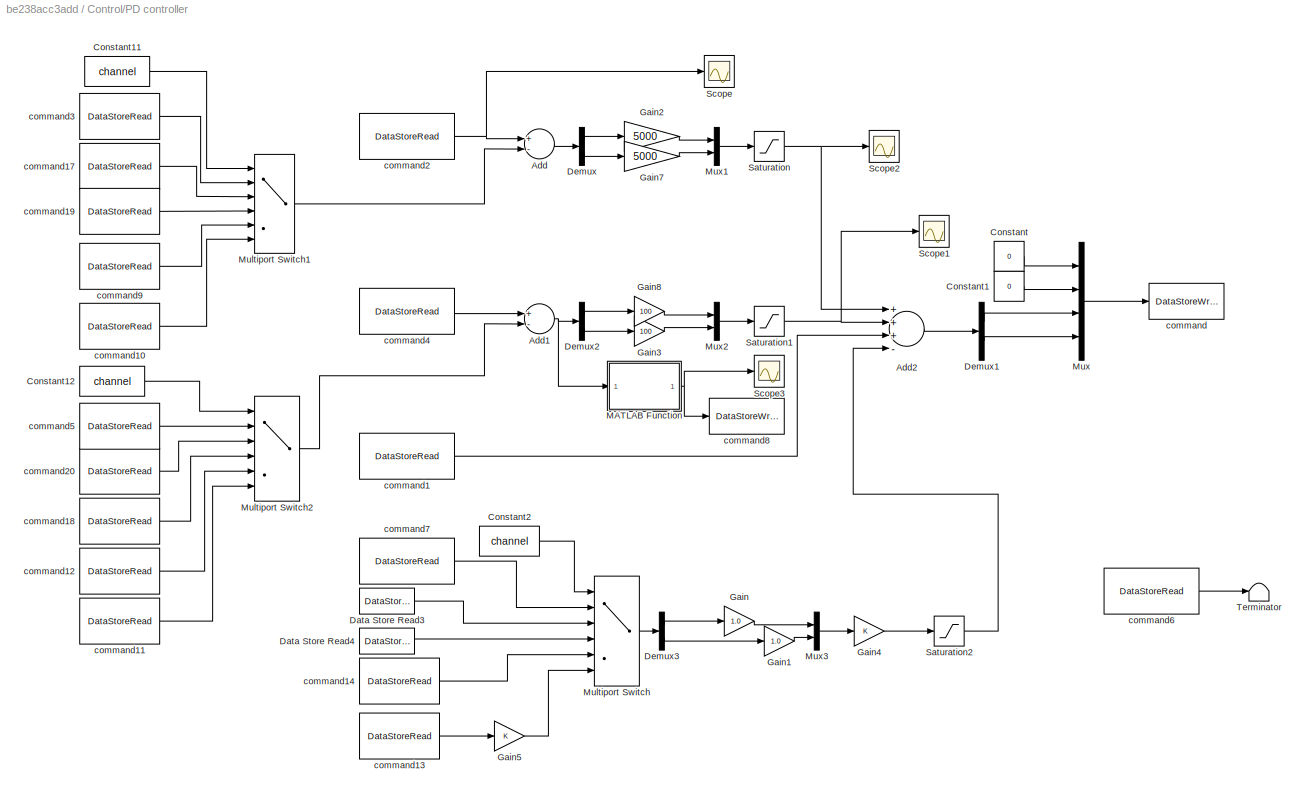
BLOCK [SubSystem] Control/PD controller
  Ports = []
  RequestExecContextInheritance = off
  Variant = off
BLOCK [Sum] Control/PD controller/Add
  InputSameDT = off
  Inputs = +-
  OutDataTypeStr = Inherit: Inherit via internal rule
  Ports = [2, 1]
  SaturateOnIntegerOverflow = off
BLOCK [Sum] Control/PD controller/Add1
  InputSameDT = off
  Inputs = +-
  OutDataTypeStr = Inherit: Inherit via internal rule
  Ports = [2, 1]
  SaturateOnIntegerOverflow = off
BLOCK [Sum] Control/PD controller/Add2
  InputSameDT = off
  Inputs = +++-
  OutDataTypeStr = Inherit: Inherit via internal rule
  Ports = [4, 1]
  SaturateOnIntegerOverflow = off
BLOCK [Constant] Control/PD controller/Constant
  Value = 0
BLOCK [Constant] Control/PD controller/Constant1
  Value = 0
BLOCK [Constant] Control/PD controller/Constant11
  Value = channel
BLOCK [Constant] Control/PD controller/Constant12
  Value = channel
BLOCK [Constant] Control/PD controller/Constant2
  Value = channel
BLOCK [DataStoreRead] Control/PD controller/Data Store Read3
  DataStoreElements = xk(1:2)
  DataStoreName = xk
  Ports = [0, 1]
BLOCK [DataStoreRead] Control/PD controller/Data Store Read4
  DataStoreElements = mkxk(1:2)
  DataStoreName = mkxk
  Ports = [0, 1]
BLOCK [Demux] Control/PD controller/Demux
  DisplayOption = bar
  Outputs = 2
  Ports = [1, 2]
BLOCK [Demux] Control/PD controller/Demux1
  DisplayOption = bar
  Outputs = 2
  Ports = [1, 2]
BLOCK [Demux] Control/PD controller/Demux2
  DisplayOption = bar
  Outputs = 2
  Ports = [1, 2]
BLOCK [Demux] Control/PD controller/Demux3
  DisplayOption = bar
  Outputs = 2
  Ports = [1, 2]
BLOCK [Gain] Control/PD controller/Gain
  Gain = 1.0
  OutDataTypeStr = Inherit: Inherit via internal rule
  ParamDataTypeStr = Inherit: Inherit via internal rule
  SaturateOnIntegerOverflow = off
BLOCK [Gain] Control/PD controller/Gain1
  Gain = 1.0
  OutDataTypeStr = Inherit: Inherit via internal rule
  ParamDataTypeStr = Inherit: Inherit via internal rule
  SaturateOnIntegerOverflow = off
BLOCK [Gain] Control/PD controller/Gain2
  Gain = 5000
  OutDataTypeStr = Inherit: Inherit via internal rule
  ParamDataTypeStr = Inherit: Inherit via internal rule
  SaturateOnIntegerOverflow = off
BLOCK [Gain] Control/PD controller/Gain3
  Gain = 100
  OutDataTypeStr = Inherit: Inherit via internal rule
  ParamDataTypeStr = Inherit: Inherit via internal rule
  SaturateOnIntegerOverflow = off
BLOCK [Gain] Control/PD controller/Gain4
  OutDataTypeStr = Inherit: Inherit via internal rule
  ParamDataTypeStr = Inherit: Inherit via internal rule
  SaturateOnIntegerOverflow = off
BLOCK [Gain] Control/PD controller/Gain5
  OutDataTypeStr = Inherit: Inherit via internal rule
  ParamDataTypeStr = Inherit: Inherit via internal rule
  SaturateOnIntegerOverflow = off
BLOCK [Gain] Control/PD controller/Gain7
  Gain = 5000
  OutDataTypeStr = Inherit: Inherit via internal rule
  ParamDataTypeStr = Inherit: Inherit via internal rule
  SaturateOnIntegerOverflow = off
BLOCK [Gain] Control/PD controller/Gain8
  Gain = 100
  OutDataTypeStr = Inherit: Inherit via internal rule
  ParamDataTypeStr = Inherit: Inherit via internal rule
  SaturateOnIntegerOverflow = off
BLOCK [SubSystem] Control/PD controller/MATLAB Function
  ErrorFcn = Stateflow.Translate.translate
  PermitHierarchicalResolution = ExplicitOnly
  Ports = [1, 1]
  RequestExecContextInheritance = off
  SFBlockType = MATLAB Function
  TreatAsAtomicUnit = on
  Variant = off
BLOCK [Demux] Control/PD controller/MATLAB Function/ Demux 
  Outputs = 1
  Ports = [1, 1]
BLOCK [S-Function] Control/PD controller/MATLAB Function/ SFunction 
  EnableBusSupport = on
  FunctionName = sf_sfun
  PortCounts = [1 2]
  Ports = [1, 2]
  SFcnIsStateOwnerBlock = off
  SFunctionDeploymentMode = off
  Tag = Stateflow S-Function Exp 12
BLOCK [Terminator] Control/PD controller/MATLAB Function/ Terminator 
BLOCK [Inport] Control/PD controller/MATLAB Function/vele
  IconDisplay = Port number
BLOCK [Outport] Control/PD controller/MATLAB Function/y
  IconDisplay = Port number
BLOCK [MultiPortSwitch] Control/PD controller/Multiport Switch
  InputSameDT = off
  Inputs = 5
  Ports = [6, 1]
  SaturateOnIntegerOverflow = off
BLOCK [MultiPortSwitch] Control/PD controller/Multiport Switch1
  InputSameDT = off
  Inputs = 5
  Ports = [6, 1]
  SaturateOnIntegerOverflow = off
BLOCK [MultiPortSwitch] Control/PD controller/Multiport Switch2
  InputSameDT = off
  Inputs = 5
  Ports = [6, 1]
  SaturateOnIntegerOverflow = off
BLOCK [Mux] Control/PD controller/Mux
  DisplayOption = bar
  Ports = [4, 1]
BLOCK [Mux] Control/PD controller/Mux1
  DisplayOption = bar
  Inputs = 2
  Ports = [2, 1]
BLOCK [Mux] Control/PD controller/Mux2
  DisplayOption = bar
  Inputs = 2
  Ports = [2, 1]
BLOCK [Mux] Control/PD controller/Mux3
  DisplayOption = bar
  Inputs = 2
  Ports = [2, 1]
BLOCK [Saturate] Control/PD controller/Saturation
  InputPortMap = u0
  LowerLimit = -50
  Ports = [1, 1]
  UpperLimit = 50
BLOCK [Saturate] Control/PD controller/Saturation1
  InputPortMap = u0
  LowerLimit = -50
  Ports = [1, 1]
  UpperLimit = 50
BLOCK [Saturate] Control/PD controller/Saturation2
  InputPortMap = u0
  LowerLimit = -150
  Ports = [1, 1]
  UpperLimit = 150
BLOCK [Scope] Control/PD controller/Scope
  NumInputPorts = 1
  Ports = [1]
  ScopeSpecificationString = Simulink.scopes.TimeScopeBlockCfg('CurrentConfiguration', extmgr.ConfigurationSet(extmgr.Configuration('Core','General UI',true),extmgr.Configuration('Core','Source UI',true),extmgr.Configuration('Sources','WiredSimulink',true,'DataLoggingVariableName','ScopeData5'),extmgr.Configuration('Visuals','Time Domain',true,'SerializedDisplays',{struct('MinYLimReal','-1.30464','MaxYLimReal','0.74613','YLab...<+1382ch>
BLOCK [Scope] Control/PD controller/Scope1
  NumInputPorts = 1
  Ports = [1]
  ScopeSpecificationString = Simulink.scopes.TimeScopeBlockCfg('CurrentConfiguration', extmgr.ConfigurationSet(extmgr.Configuration('Core','General UI',true),extmgr.Configuration('Core','Source UI',true),extmgr.Configuration('Sources','WiredSimulink',true,'DataLoggingVariableName','ScopeData1'),extmgr.Configuration('Visuals','Time Domain',true,'SerializedDisplays',{struct('MinYLimReal','-4.80544','MaxYLimReal','5.02524','YLab...<+1490ch>
BLOCK [Scope] Control/PD controller/Scope2
  NumInputPorts = 1
  Ports = [1]
  ScopeSpecificationString = Simulink.scopes.TimeScopeBlockCfg('CurrentConfiguration', extmgr.ConfigurationSet(extmgr.Configuration('Core','General UI',true),extmgr.Configuration('Core','Source UI',true),extmgr.Configuration('Sources','WiredSimulink',true,'DataLoggingVariableName','ScopeData2'),extmgr.Configuration('Visuals','Time Domain',true,'SerializedDisplays',{struct('MinYLimReal','-19.85978','MaxYLimReal','17.3934','YLa...<+1470ch>
BLOCK [Scope] Control/PD controller/Scope3
  NumInputPorts = 1
  Ports = [1]
  ScopeSpecificationString = Simulink.scopes.TimeScopeBlockCfg('CurrentConfiguration', extmgr.ConfigurationSet(extmgr.Configuration('Core','General UI',true),extmgr.Configuration('Core','Source UI',true),extmgr.Configuration('Sources','WiredSimulink',true,'DataLoggingVariableName','ScopeData1'),extmgr.Configuration('Visuals','Time Domain',true,'SerializedDisplays',{struct('MinYLimReal','-0.00947','MaxYLimReal','0.08527','YLab...<+1498ch>
BLOCK [Terminator] Control/PD controller/Terminator
BLOCK [DataStoreWrite] Control/PD controller/command
  DataStoreName = command
  Ports = [1]
BLOCK [DataStoreRead] Control/PD controller/command1
  DataStoreElements = observer(:)
  DataStoreName = observer
  Ports = [0, 1]
BLOCK [DataStoreRead] Control/PD controller/command10
  DataStoreElements = immxk(5:6)
  DataStoreName = immxk
  Ports = [0, 1]
BLOCK [DataStoreRead] Control/PD controller/command11
  DataStoreElements = immxk(3:4)
  DataStoreName = immxk
  Ports = [0, 1]
BLOCK [DataStoreRead] Control/PD controller/command12
  DataStoreElements = cxk(3:4)
  DataStoreName = cxk
  Ports = [0, 1]
BLOCK [DataStoreRead] Control/PD controller/command13
  DataStoreElements = immxk(1:2)
  DataStoreName = immxk
  Ports = [0, 1]
BLOCK [DataStoreRead] Control/PD controller/command14
  DataStoreElements = cxk(1:2)
  DataStoreName = cxk
  Ports = [0, 1]
BLOCK [DataStoreRead] Control/PD controller/command17
  DataStoreElements = xk(5:6)
  DataStoreName = xk
  Ports = [0, 1]
BLOCK [DataStoreRead] Control/PD controller/command18
  DataStoreElements = mkxk(3:4)
  DataStoreName = mkxk
  Ports = [0, 1]
BLOCK [DataStoreRead] Control/PD controller/command19
  DataStoreElements = mkxk(5:6)
  DataStoreName = mkxk
  Ports = [0, 1]
BLOCK [DataStoreRead] Control/PD controller/command2
  DataStoreElements = desired_position(3:4)
  DataStoreName = desired_position
  Ports = [0, 1]
BLOCK [DataStoreRead] Control/PD controller/command20
  DataStoreElements = xk(3:4)
  DataStoreName = xk
  Ports = [0, 1]
BLOCK [DataStoreRead] Control/PD controller/command3
  DataStoreElements = position(3:4)
  DataStoreName = position
  Ports = [0, 1]
BLOCK [DataStoreRead] Control/PD controller/command4
  DataStoreElements = desired_velocity(3:4)
  DataStoreName = desired_velocity
  Ports = [0, 1]
BLOCK [DataStoreRead] Control/PD controller/command5
  DataStoreElements = velocity(3:4)
  DataStoreName = velocity
  Ports = [0, 1]
BLOCK [DataStoreRead] Control/PD controller/command6
  DataStoreElements = disturbance(1:2)
  DataStoreName = disturbance
  Ports = [0, 1]
BLOCK [DataStoreRead] Control/PD controller/command7
  DataStoreElements = disturbance(3:4)
  DataStoreName = disturbance
  Ports = [0, 1]
BLOCK [DataStoreWrite] Control/PD controller/command8
  DataStoreName = vel_var
  Ports = [1]
BLOCK [DataStoreRead] Control/PD controller/command9
  DataStoreElements = cxk(5:6)
  DataStoreName = cxk
  Ports = [0, 1]
BLOCK [Display] Display
  Decimation = 1
  Ports = [1]
BLOCK [SubSystem] Emergency
  Ports = []
  RequestExecContextInheritance = off
  Variant = off
BLOCK [Clock] Emergency/Clock1
BLOCK [DataStoreRead] Emergency/Data Store Read
  DataStoreName = vel_var
  Ports = [0, 1]
BLOCK [DataStoreRead] Emergency/Data Store Read1
  DataStoreName = command
  Ports = [0, 1]
BLOCK [Fcn] Emergency/Fcn
  Expr = u-3
BLOCK [SubSystem] Emergency/MATLAB Function
  ErrorFcn = Stateflow.Translate.translate
  PermitHierarchicalResolution = ExplicitOnly
  Ports = [2, 1]
  RequestExecContextInheritance = off
  SFBlockType = MATLAB Function
  TreatAsAtomicUnit = on
  Variant = off
BLOCK [Demux] Emergency/MATLAB Function/ Demux 
  Outputs = 1
  Ports = [1, 1]
BLOCK [S-Function] Emergency/MATLAB Function/ SFunction 
  EnableBusSupport = on
  FunctionName = sf_sfun
  PortCounts = [2 2]
  Ports = [2, 2]
  SFcnIsStateOwnerBlock = off
  SFunctionDeploymentMode = off
  Tag = Stateflow S-Function Exp 7
BLOCK [Terminator] Emergency/MATLAB Function/ Terminator 
BLOCK [Inport] Emergency/MATLAB Function/force
  IconDisplay = Port number
  Port = 2
BLOCK [Inport] Emergency/MATLAB Function/position
  IconDisplay = Port number
BLOCK [Outport] Emergency/MATLAB Function/y
  IconDisplay = Port number
BLOCK [SubSystem] Emergency/MATLAB Function1
  ErrorFcn = Stateflow.Translate.translate
  PermitHierarchicalResolution = ExplicitOnly
  Ports = [1, 1]
  RequestExecContextInheritance = off
  SFBlockType = MATLAB Function
  TreatAsAtomicUnit = on
  Variant = off
BLOCK [Demux] Emergency/MATLAB Function1/ Demux 
  Outputs = 1
  Ports = [1, 1]
BLOCK [S-Function] Emergency/MATLAB Function1/ SFunction 
  EnableBusSupport = on
  FunctionName = sf_sfun
  PortCounts = [1 2]
  Ports = [1, 2]
  SFcnIsStateOwnerBlock = off
  SFunctionDeploymentMode = off
  Tag = Stateflow S-Function Exp 13
BLOCK [Terminator] Emergency/MATLAB Function1/ Terminator 
BLOCK [Inport] Emergency/MATLAB Function1/velvar
  IconDisplay = Port number
BLOCK [Outport] Emergency/MATLAB Function1/y
  IconDisplay = Port number
BLOCK [SubSystem] Emergency/MATLAB Function2
  ErrorFcn = Stateflow.Translate.translate
  PermitHierarchicalResolution = ExplicitOnly
  Ports = [1, 1]
  RequestExecContextInheritance = off
  SFBlockType = MATLAB Function
  TreatAsAtomicUnit = on
  Variant = off
BLOCK [Demux] Emergency/MATLAB Function2/ Demux 
  Outputs = 1
  Ports = [1, 1]
BLOCK [S-Function] Emergency/MATLAB Function2/ SFunction 
  EnableBusSupport = on
  FunctionName = sf_sfun
  PortCounts = [1 2]
  Ports = [1, 2]
  SFcnIsStateOwnerBlock = off
  SFunctionDeploymentMode = off
  Tag = Stateflow S-Function Exp 14
BLOCK [Terminator] Emergency/MATLAB Function2/ Terminator 
BLOCK [Inport] Emergency/MATLAB Function2/cmd
  IconDisplay = Port number
BLOCK [Outport] Emergency/MATLAB Function2/y
  IconDisplay = Port number
BLOCK [SubSystem] Emergency/MATLAB Function3
  ErrorFcn = Stateflow.Translate.translate
  PermitHierarchicalResolution = ExplicitOnly
  Ports = [1, 1]
  RequestExecContextInheritance = off
  SFBlockType = MATLAB Function
  TreatAsAtomicUnit = on
  Variant = off
BLOCK [Demux] Emergency/MATLAB Function3/ Demux 
  Outputs = 1
  Ports = [1, 1]
BLOCK [S-Function] Emergency/MATLAB Function3/ SFunction 
  EnableBusSupport = on
  FunctionName = sf_sfun
  PortCounts = [1 2]
  Ports = [1, 2]
  SFcnIsStateOwnerBlock = off
  SFunctionDeploymentMode = off
  Tag = Stateflow S-Function Exp 21
BLOCK [Terminator] Emergency/MATLAB Function3/ Terminator 
BLOCK [Inport] Emergency/MATLAB Function3/time
  IconDisplay = Port number
BLOCK [Outport] Emergency/MATLAB Function3/y
  IconDisplay = Port number
BLOCK [Stop] Emergency/Stop Simulation
BLOCK [Stop] Emergency/Stop Simulation1
BLOCK [Stop] Emergency/Stop Simulation2
BLOCK [Stop] Emergency/Stop Simulation3
BLOCK [DataStoreRead] Emergency/interaction_force
  DataStoreName = interaction_force
  Ports = [0, 1]
BLOCK [DataStoreRead] Emergency/position
  DataStoreName = position
  Ports = [0, 1]
BLOCK [Reference] EtherCAT Init   REF=xpcethercatlib/EtherCAT Init 
  Ports = [0, 1]
  Priority = 0
  SourceBlock = xpcethercatlib/EtherCAT Init
  SourceProductBaseCode = XP
  SourceProductName = Simulink Real-Time
  SourceType = xpcethercatinit
BLOCK [Fcn] Fcn4
  Expr = u>3
BLOCK [SubSystem] Motor Torque
  Ports = []
  RequestExecContextInheritance = off
  Variant = off
BLOCK [Reference] Motor Torque/EtherCAT PDO Receive1  REF=xpcethercatlib/EtherCAT PDO Receive
  Ports = [0, 1]
  Priority = 2
  SourceBlock = xpcethercatlib/EtherCAT PDO Receive
  SourceProductBaseCode = XP
  SourceProductName = Simulink Real-Time
  SourceType = xpcethercat_rx_var
BLOCK [Reference] Motor Torque/EtherCAT PDO Receive2  REF=xpcethercatlib/EtherCAT PDO Receive
  Ports = [0, 1]
  Priority = 2
  SourceBlock = xpcethercatlib/EtherCAT PDO Receive
  SourceProductBaseCode = XP
  SourceProductName = Simulink Real-Time
  SourceType = xpcethercat_rx_var
BLOCK [Reference] Motor Torque/EtherCAT PDO Receive3  REF=xpcethercatlib/EtherCAT PDO Receive
  Ports = [0, 1]
  Priority = 2
  SourceBlock = xpcethercatlib/EtherCAT PDO Receive
  SourceProductBaseCode = XP
  SourceProductName = Simulink Real-Time
  SourceType = xpcethercat_rx_var
BLOCK [Reference] Motor Torque/EtherCAT PDO Receive5  REF=xpcethercatlib/EtherCAT PDO Receive
  Ports = [0, 1]
  Priority = 2
  SourceBlock = xpcethercatlib/EtherCAT PDO Receive
  SourceProductBaseCode = XP
  SourceProductName = Simulink Real-Time
  SourceType = xpcethercat_rx_var
BLOCK [Gain] Motor Torque/Gain1
  Gain = 0.939/1000*Kg
  OutDataTypeStr = double
  ParamDataTypeStr = Inherit: Inherit via internal rule
  SaturateOnIntegerOverflow = off
BLOCK [Gain] Motor Torque/Gain2
  Gain = 0.939/1000*Kg
  OutDataTypeStr = double
  ParamDataTypeStr = Inherit: Inherit via internal rule
  SaturateOnIntegerOverflow = off
BLOCK [Gain] Motor Torque/Gain4
  Gain = 0.939/1000*Kg
  OutDataTypeStr = double
  ParamDataTypeStr = Inherit: Inherit via internal rule
  SaturateOnIntegerOverflow = off
BLOCK [Gain] Motor Torque/Gain6
  Gain = 0.939/1000*Kg
  OutDataTypeStr = double
  ParamDataTypeStr = Inherit: Inherit via internal rule
  SaturateOnIntegerOverflow = off
BLOCK [Mux] Motor Torque/Mux
  DisplayOption = bar
  Ports = [4, 1]
BLOCK [DataStoreWrite] Motor Torque/motor_torque
  DataStoreName = motor_torque
  Ports = [1]
BLOCK [SubSystem] Position
  Ports = []
  RequestExecContextInheritance = off
  Variant = off
BLOCK [Clock] Position/Clock
BLOCK [DataStoreMemory] Position/Data Store Memory
  DataStoreName = Bias
  InitialValue = zeros(4,1)
  ReadBeforeWriteMsg = warning
  ShowAdditionalParam = off
  WriteAfterReadMsg = warning
  WriteAfterWriteMsg = warning
BLOCK [DataStoreRead] Position/Data Store Read
  DataStoreName = Bias
  Ports = [0, 1]
BLOCK [DataStoreWrite] Position/Data Store Write
  DataStoreName = Bias
  Ports = [1]
BLOCK [Reference] Position/EtherCAT PDO Receive1  REF=xpcethercatlib/EtherCAT PDO Receive
  Ports = [0, 1]
  Priority = 2
  SourceBlock = xpcethercatlib/EtherCAT PDO Receive
  SourceProductBaseCode = XP
  SourceProductName = Simulink Real-Time
  SourceType = xpcethercat_rx_var
BLOCK [Reference] Position/EtherCAT PDO Receive2  REF=xpcethercatlib/EtherCAT PDO Receive
  Ports = [0, 1]
  Priority = 2
  SourceBlock = xpcethercatlib/EtherCAT PDO Receive
  SourceProductBaseCode = XP
  SourceProductName = Simulink Real-Time
  SourceType = xpcethercat_rx_var
BLOCK [Reference] Position/EtherCAT PDO Receive3  REF=xpcethercatlib/EtherCAT PDO Receive
  Ports = [0, 1]
  Priority = 2
  SourceBlock = xpcethercatlib/EtherCAT PDO Receive
  SourceProductBaseCode = XP
  SourceProductName = Simulink Real-Time
  SourceType = xpcethercat_rx_var
BLOCK [Reference] Position/EtherCAT PDO Receive5  REF=xpcethercatlib/EtherCAT PDO Receive
  Ports = [0, 1]
  Priority = 2
  SourceBlock = xpcethercatlib/EtherCAT PDO Receive
  SourceProductBaseCode = XP
  SourceProductName = Simulink Real-Time
  SourceType = xpcethercat_rx_var
BLOCK [Gain] Position/Gain1
  Gain = 1/4000*2*pi/Kg
  OutDataTypeStr = double
  ParamDataTypeStr = Inherit: Inherit via internal rule
  SaturateOnIntegerOverflow = off
BLOCK [Gain] Position/Gain2
  Gain = 1/4000*2*pi/Kg
  OutDataTypeStr = double
  ParamDataTypeStr = Inherit: Inherit via internal rule
  SaturateOnIntegerOverflow = off
BLOCK [Gain] Position/Gain4
  Gain = 1/4000*2*pi/Kg
  OutDataTypeStr = double
  ParamDataTypeStr = Inherit: Inherit via internal rule
  SaturateOnIntegerOverflow = off
BLOCK [Gain] Position/Gain6
  Gain = 1/4000*2*pi/Kg
  OutDataTypeStr = double
  ParamDataTypeStr = Inherit: Inherit via internal rule
  SaturateOnIntegerOverflow = off
BLOCK [SubSystem] Position/MATLAB Function
  ErrorFcn = Stateflow.Translate.translate
  PermitHierarchicalResolution = ExplicitOnly
  Ports = [3, 2]
  RequestExecContextInheritance = off
  SFBlockType = MATLAB Function
  TreatAsAtomicUnit = on
  Variant = off
BLOCK [Demux] Position/MATLAB Function/ Demux 
  Outputs = 1
  Ports = [1, 1]
BLOCK [S-Function] Position/MATLAB Function/ SFunction 
  EnableBusSupport = on
  FunctionName = sf_sfun
  PortCounts = [3 3]
  Ports = [3, 3]
  SFcnIsStateOwnerBlock = off
  SFunctionDeploymentMode = off
  Tag = Stateflow S-Function Exp 2
BLOCK [Terminator] Position/MATLAB Function/ Terminator 
BLOCK [Outport] Position/MATLAB Function/Bias
  IconDisplay = Port number
  Port = 2
BLOCK [Inport] Position/MATLAB Function/Bias 
  IconDisplay = Port number
  Port = 2
BLOCK [Inport] Position/MATLAB Function/time
  IconDisplay = Port number
BLOCK [Outport] Position/MATLAB Function/y
  IconDisplay = Port number
BLOCK [Inport] Position/MATLAB Function/y 
  IconDisplay = Port number
  Port = 3
BLOCK [Mux] Position/Mux
  DisplayOption = bar
  Ports = [4, 1]
BLOCK [DataStoreWrite] Position/position
  DataStoreName = position
  Ports = [1]
BLOCK [SubSystem] Scopes
  Ports = []
  RequestExecContextInheritance = off
  Variant = off
BLOCK [Sum] Scopes/Add
  InputSameDT = off
  Inputs = +-
  OutDataTypeStr = Inherit: Inherit via internal rule
  Ports = [2, 1]
  SaturateOnIntegerOverflow = off
BLOCK [Sum] Scopes/Add1
  InputSameDT = off
  Inputs = +-
  OutDataTypeStr = Inherit: Inherit via internal rule
  Ports = [2, 1]
  SaturateOnIntegerOverflow = off
BLOCK [DataStoreRead] Scopes/Data Store Read
  DataStoreName = interaction_force
  Ports = [0, 1]
BLOCK [DataStoreRead] Scopes/Data Store Read1
  DataStoreName = observer
  Ports = [0, 1]
BLOCK [DataStoreRead] Scopes/Data Store Read10
  DataStoreElements = mkxk(1)
  DataStoreName = mkxk
  Ports = [0, 1]
BLOCK [DataStoreRead] Scopes/Data Store Read11
  DataStoreElements = immxk(1)
  DataStoreName = immxk
  Ports = [0, 1]
BLOCK [DataStoreRead] Scopes/Data Store Read12
  DataStoreElements = immxk(2)
  DataStoreName = immxk
  Ports = [0, 1]
BLOCK [DataStoreRead] Scopes/Data Store Read13
  DataStoreElements = cxk(:)
  DataStoreName = cxk
  Ports = [0, 1]
BLOCK [DataStoreRead] Scopes/Data Store Read14
  DataStoreElements = immxk(:)
  DataStoreName = immxk
  Ports = [0, 1]
BLOCK [DataStoreRead] Scopes/Data Store Read2
  DataStoreName = friction
  Ports = [0, 1]
BLOCK [DataStoreRead] Scopes/Data Store Read3
  DataStoreElements = xk(1:2)
  DataStoreName = xk
  Ports = [0, 1]
BLOCK [DataStoreRead] Scopes/Data Store Read4
  DataStoreElements = mkxk(1:2)
  DataStoreName = mkxk
  Ports = [0, 1]
BLOCK [DataStoreRead] Scopes/Data Store Read5
  DataStoreElements = xk(2)
  DataStoreName = xk
  Ports = [0, 1]
BLOCK [DataStoreRead] Scopes/Data Store Read6
  DataStoreElements = mkxk(2)
  DataStoreName = mkxk
  Ports = [0, 1]
BLOCK [DataStoreRead] Scopes/Data Store Read7
  DataStoreElements = xk(:)
  DataStoreName = xk
  Ports = [0, 1]
BLOCK [DataStoreRead] Scopes/Data Store Read8
  DataStoreElements = mkxk(:)
  DataStoreName = mkxk
  Ports = [0, 1]
BLOCK [DataStoreRead] Scopes/Data Store Read9
  DataStoreElements = xk(1)
  DataStoreName = xk
  Ports = [0, 1]
BLOCK [Demux] Scopes/Demux1
  DisplayOption = bar
  Ports = [1, 4]
BLOCK [Gain] Scopes/Gain
  Gain = 0
  OutDataTypeStr = Inherit: Inherit via internal rule
  ParamDataTypeStr = Inherit: Inherit via internal rule
  SaturateOnIntegerOverflow = off
BLOCK [Mux] Scopes/Mux
  DisplayOption = bar
  Inputs = 2
  Ports = [2, 1]
BLOCK [Mux] Scopes/Mux1
  DisplayOption = bar
  Inputs = 2
  Ports = [2, 1]
BLOCK [Mux] Scopes/Mux2
  DisplayOption = bar
  Inputs = 12
  Ports = [12, 1]
BLOCK [Mux] Scopes/Mux3
  DisplayOption = bar
  Inputs = 2
  Ports = [2, 1]
BLOCK [Mux] Scopes/Mux4
  DisplayOption = bar
  Inputs = 2
  Ports = [2, 1]
BLOCK [Mux] Scopes/Mux5
  DisplayOption = bar
  Ports = [4, 1]
BLOCK [Mux] Scopes/Mux6
  DisplayOption = bar
  Inputs = 5
  Ports = [5, 1]
BLOCK [Mux] Scopes/Mux7
  DisplayOption = bar
  Inputs = 5
  Ports = [5, 1]
BLOCK [Reference] Scopes/Scope 1  REF=slrtlib/Displays and
Logging/Scope 
  Ports = [1]
  SourceBlock = slrtlib/Displays and\nLogging/Scope
  SourceProductBaseCode = XP
  SourceProductName = Simulink Real-Time
  SourceType = xpcscopeblock
BLOCK [Reference] Scopes/Scope 2  REF=slrtlib/Displays and
Logging/Scope 
  Ports = [1]
  SourceBlock = slrtlib/Displays and\nLogging/Scope
  SourceProductBaseCode = XP
  SourceProductName = Simulink Real-Time
  SourceType = xpcscopeblock
BLOCK [Reference] Scopes/Scope 3  REF=slrtlib/Displays and
Logging/Scope 
  Ports = [1]
  SourceBlock = slrtlib/Displays and\nLogging/Scope
  SourceProductBaseCode = XP
  SourceProductName = Simulink Real-Time
  SourceType = xpcscopeblock
BLOCK [Reference] Scopes/Scope 4  REF=slrtlib/Displays and
Logging/Scope 
  Ports = [1]
  SourceBlock = slrtlib/Displays and\nLogging/Scope
  SourceProductBaseCode = XP
  SourceProductName = Simulink Real-Time
  SourceType = xpcscopeblock
BLOCK [Reference] Scopes/Scope 5  REF=slrtlib/Displays and
Logging/Scope 
  Ports = [1]
  SourceBlock = slrtlib/Displays and\nLogging/Scope
  SourceProductBaseCode = XP
  SourceProductName = Simulink Real-Time
  SourceType = xpcscopeblock
BLOCK [Reference] Scopes/Scope 6  REF=slrtlib/Displays and
Logging/Scope 
  Ports = [1]
  SourceBlock = slrtlib/Displays and\nLogging/Scope
  SourceProductBaseCode = XP
  SourceProductName = Simulink Real-Time
  SourceType = xpcscopeblock
BLOCK [Reference] Scopes/Scope 7  REF=slrtlib/Displays and
Logging/Scope 
  Ports = [1]
  SourceBlock = slrtlib/Displays and\nLogging/Scope
  SourceProductBaseCode = XP
  SourceProductName = Simulink Real-Time
  SourceType = xpcscopeblock
BLOCK [Reference] Scopes/Scope 8  REF=slrtlib/Displays and
Logging/Scope 
  Ports = [1]
  SourceBlock = slrtlib/Displays and\nLogging/Scope
  SourceProductBaseCode = XP
  SourceProductName = Simulink Real-Time
  SourceType = xpcscopeblock
BLOCK [Reference] Scopes/Scope 9  REF=slrtlib/Displays and
Logging/Scope 
  Ports = [1]
  SourceBlock = slrtlib/Displays and\nLogging/Scope
  SourceProductBaseCode = XP
  SourceProductName = Simulink Real-Time
  SourceType = xpcscopeblock
BLOCK [Sum] Scopes/Subtract
  InputSameDT = off
  OutDataTypeStr = Inherit: Inherit via internal rule
  Ports = [2, 1]
  SaturateOnIntegerOverflow = off
BLOCK [Sum] Scopes/Subtract1
  InputSameDT = off
  OutDataTypeStr = Inherit: Inherit via internal rule
  Ports = [2, 1]
  SaturateOnIntegerOverflow = off
BLOCK [Sum] Scopes/Subtract2
  InputSameDT = off
  OutDataTypeStr = Inherit: Inherit via internal rule
  Ports = [2, 1]
  SaturateOnIntegerOverflow = off
BLOCK [DataStoreRead] Scopes/motor_torque
  DataStoreElements = motor_torque(3:4)
  DataStoreName = motor_torque
  Ports = [0, 1]
BLOCK [DataStoreRead] Scopes/position
  DataStoreElements = position(3:4)
  DataStoreName = position
  Ports = [0, 1]
BLOCK [DataStoreRead] Scopes/position1
  DataStoreElements = desired_position(3:4)
  DataStoreName = desired_position
  Ports = [0, 1]
BLOCK [DataStoreRead] Scopes/velocity
  DataStoreElements = velocity(3:4)
  DataStoreName = velocity
  Ports = [0, 1]
BLOCK [DataStoreRead] Scopes/velocity1
  DataStoreElements = acceleration(3:4)
  DataStoreName = acceleration
  Ports = [0, 1]
BLOCK [DataStoreRead] Scopes/velocity2
  DataStoreElements = desired_velocity(3:4)
  DataStoreName = desired_velocity
  Ports = [0, 1]
BLOCK [DataStoreRead] Scopes/velocity3
  DataStoreName = disturbance
  Ports = [0, 1]
BLOCK [DataStoreRead] Scopes/velocity4
  DataStoreElements = command(3:4)
  DataStoreName = command
  Ports = [0, 1]
BLOCK [DataStoreRead] Scopes/velocity5
  DataStoreElements = disturbance(2)
  DataStoreName = disturbance
  Ports = [0, 1]
BLOCK [DataStoreRead] Scopes/velocity6
  DataStoreElements = disturbance(4)
  DataStoreName = disturbance
  Ports = [0, 1]
BLOCK [DataStoreRead] Scopes/velocity7
  DataStoreElements = disturbance(1)
  DataStoreName = disturbance
  Ports = [0, 1]
BLOCK [DataStoreRead] Scopes/velocity8
  DataStoreElements = disturbance(3)
  DataStoreName = disturbance
  Ports = [0, 1]
BLOCK [SubSystem] Velocity
  Ports = []
  RequestExecContextInheritance = off
  Variant = off
BLOCK [Sum] Velocity/Add
  InputSameDT = off
  Inputs = +-
  OutDataTypeStr = Inherit: Inherit via internal rule
  Ports = [2, 1]
  SaturateOnIntegerOverflow = off
BLOCK [Reference] Velocity/Discrete Derivative  REF=simulink/Discrete/Discrete Derivative
  Ports = [1, 1]
  SourceBlock = simulink/Discrete/Discrete Derivative
  SourceProductBaseCode = SL
  SourceProductName = Simulink
  SourceType = Discrete Derivative
BLOCK [DiscreteIntegrator] Velocity/Discrete-Time Integrator
  ICPrevOutput = DiscIntNeverNeededParam
  ICPrevScaledInput = DiscIntNeverNeededParam
  InitialConditionSetting = State (most efficient)
  Ports = [1, 1]
  SampleTime = ts
BLOCK [Reference] Velocity/EtherCAT PDO Receive1  REF=xpcethercatlib/EtherCAT PDO Receive
  Ports = [0, 1]
  Priority = 2
  SourceBlock = xpcethercatlib/EtherCAT PDO Receive
  SourceProductBaseCode = XP
  SourceProductName = Simulink Real-Time
  SourceType = xpcethercat_rx_var
BLOCK [Reference] Velocity/EtherCAT PDO Receive2  REF=xpcethercatlib/EtherCAT PDO Receive
  Ports = [0, 1]
  Priority = 2
  SourceBlock = xpcethercatlib/EtherCAT PDO Receive
  SourceProductBaseCode = XP
  SourceProductName = Simulink Real-Time
  SourceType = xpcethercat_rx_var
BLOCK [Reference] Velocity/EtherCAT PDO Receive3  REF=xpcethercatlib/EtherCAT PDO Receive
  Ports = [0, 1]
  Priority = 2
  SourceBlock = xpcethercatlib/EtherCAT PDO Receive
  SourceProductBaseCode = XP
  SourceProductName = Simulink Real-Time
  SourceType = xpcethercat_rx_var
BLOCK [Reference] Velocity/EtherCAT PDO Receive5  REF=xpcethercatlib/EtherCAT PDO Receive
  Ports = [0, 1]
  Priority = 2
  SourceBlock = xpcethercatlib/EtherCAT PDO Receive
  SourceProductBaseCode = XP
  SourceProductName = Simulink Real-Time
  SourceType = xpcethercat_rx_var
BLOCK [Gain] Velocity/Gain
  Gain = acc_gain
  OutDataTypeStr = Inherit: Inherit via internal rule
  ParamDataTypeStr = Inherit: Inherit via internal rule
  SaturateOnIntegerOverflow = off
BLOCK [Gain] Velocity/Gain1
  Gain = 0.1/4000*2*pi/Kg
  OutDataTypeStr = double
  ParamDataTypeStr = Inherit: Inherit via internal rule
  SaturateOnIntegerOverflow = off
BLOCK [Gain] Velocity/Gain2
  Gain = 0.1/4000*2*pi/Kg
  OutDataTypeStr = double
  ParamDataTypeStr = Inherit: Inherit via internal rule
  SaturateOnIntegerOverflow = off
BLOCK [Gain] Velocity/Gain3
  Gain = acc_gain
  OutDataTypeStr = Inherit: Inherit via internal rule
  ParamDataTypeStr = Inherit: Inherit via internal rule
  SaturateOnIntegerOverflow = off
BLOCK [Gain] Velocity/Gain4
  Gain = 0.1/4000*2*pi/Kg
  OutDataTypeStr = double
  ParamDataTypeStr = Inherit: Inherit via internal rule
  SaturateOnIntegerOverflow = off
BLOCK [Gain] Velocity/Gain6
  Gain = 0.1/4000*2*pi/Kg
  OutDataTypeStr = double
  ParamDataTypeStr = Inherit: Inherit via internal rule
  SaturateOnIntegerOverflow = off
BLOCK [Mux] Velocity/Mux
  DisplayOption = bar
  Ports = [4, 1]
BLOCK [Scope] Velocity/Scope
  NumInputPorts = 2
  Ports = [2]
  ScopeSpecificationString = Simulink.scopes.TimeScopeBlockCfg('CurrentConfiguration', extmgr.ConfigurationSet(extmgr.Configuration('Core','General UI',true),extmgr.Configuration('Core','Source UI',true),extmgr.Configuration('Sources','WiredSimulink',true),extmgr.Configuration('Visuals','Time Domain',true,'SerializedDisplays',{struct('MinYLimReal','-99163469369736721222373499406382479717598576013036846613376127062004659153094...<+3974ch>
BLOCK [DataStoreWrite] Velocity/velocity
  DataStoreName = velocity
  Ports = [1]
BLOCK [DataStoreWrite] Velocity/velocity1
  DataStoreName = acceleration
  Ports = [1]
BLOCK [DataStoreMemory] acceleration
  DataStoreName = acceleration
  InitialValue = [0; 0; 0; 0]
  ReadBeforeWriteMsg = warning
  ShowAdditionalParam = off
  WriteAfterReadMsg = warning
  WriteAfterWriteMsg = warning
BLOCK [DataStoreMemory] command
  DataStoreName = command
  InitialValue = [0; 0; 0; 0]
  ReadBeforeWriteMsg = warning
  ShowAdditionalParam = off
  WriteAfterReadMsg = warning
  WriteAfterWriteMsg = warning
BLOCK [DataStoreMemory] command1
  DataStoreName = disturbance
  InitialValue = zeros(4,1)
  ReadBeforeWriteMsg = warning
  ShowAdditionalParam = off
  WriteAfterReadMsg = warning
  WriteAfterWriteMsg = warning
BLOCK [DataStoreMemory] command2
  DataStoreName = friction
  InitialValue = [0; 0]
  ReadBeforeWriteMsg = warning
  ShowAdditionalParam = off
  WriteAfterReadMsg = warning
  WriteAfterWriteMsg = warning
BLOCK [DataStoreMemory] command3
  DataStoreName = xk
  InitialValue = zeros(6,1)
  ReadBeforeWriteMsg = warning
  ShowAdditionalParam = off
  WriteAfterReadMsg = warning
  WriteAfterWriteMsg = warning
BLOCK [DataStoreMemory] command4
  DataStoreName = mkxk
  InitialValue = zeros(6,1)
  ReadBeforeWriteMsg = warning
  ShowAdditionalParam = off
  WriteAfterReadMsg = warning
  WriteAfterWriteMsg = warning
BLOCK [DataStoreMemory] command5
  DataStoreName = immxk
  InitialValue = zeros(6,1)
  ReadBeforeWriteMsg = warning
  ShowAdditionalParam = off
  WriteAfterReadMsg = warning
  WriteAfterWriteMsg = warning
BLOCK [DataStoreMemory] command6
  DataStoreName = cxk
  InitialValue = zeros(6,1)
  ReadBeforeWriteMsg = warning
  ShowAdditionalParam = off
  WriteAfterReadMsg = warning
  WriteAfterWriteMsg = warning
BLOCK [DataStoreMemory] desired_acc
  DataStoreName = desired_acc
  InitialValue = [0; 0; 0; 0]
  ReadBeforeWriteMsg = warning
  ShowAdditionalParam = off
  WriteAfterReadMsg = warning
  WriteAfterWriteMsg = warning
BLOCK [DataStoreMemory] desired_position
  DataStoreName = desired_position
  InitialValue = [0; 0; 0; 0]
  ReadBeforeWriteMsg = warning
  ShowAdditionalParam = off
  WriteAfterReadMsg = warning
  WriteAfterWriteMsg = warning
BLOCK [DataStoreMemory] desired_velocity
  DataStoreName = desired_velocity
  InitialValue = [0; 0; 0; 0]
  ReadBeforeWriteMsg = warning
  ShowAdditionalParam = off
  WriteAfterReadMsg = warning
  WriteAfterWriteMsg = warning
BLOCK [DataStoreMemory] interactionForce
  DataStoreName = interaction_force
  InitialValue = [0; 0; 0; 0]
  ReadBeforeWriteMsg = warning
  ShowAdditionalParam = off
  WriteAfterReadMsg = warning
  WriteAfterWriteMsg = warning
BLOCK [DataStoreMemory] motor_torque
  DataStoreName = motor_torque
  InitialValue = [0; 0; 0; 0]
  ReadBeforeWriteMsg = warning
  ShowAdditionalParam = off
  WriteAfterReadMsg = warning
  WriteAfterWriteMsg = warning
BLOCK [DataStoreMemory] observer
  DataStoreName = observer
  InitialValue = [0; 0]
  ReadBeforeWriteMsg = warning
  ShowAdditionalParam = off
  WriteAfterReadMsg = warning
  WriteAfterWriteMsg = warning
BLOCK [DataStoreMemory] position
  DataStoreName = position
  InitialValue = [0; 0; 0; 0]
  ReadBeforeWriteMsg = warning
  ShowAdditionalParam = off
  WriteAfterReadMsg = warning
  WriteAfterWriteMsg = warning
BLOCK [DataStoreMemory] position1
  DataStoreName = vel_var
  InitialValue = zeros(2,1)
  ReadBeforeWriteMsg = warning
  ShowAdditionalParam = off
  WriteAfterReadMsg = warning
  WriteAfterWriteMsg = warning
BLOCK [DataStoreMemory] velocity
  DataStoreName = velocity
  InitialValue = [0; 0; 0; 0]
  ReadBeforeWriteMsg = warning
  ShowAdditionalParam = off
  WriteAfterReadMsg = warning
  WriteAfterWriteMsg = warning
ANNOTATION (root): Global Variables
LINE 6 Axis Force//Torque Sensor/Clock:1 -> 6 Axis Force//Torque Sensor/MATLAB Function:1
LINE 6 Axis Force//Torque Sensor/Data Store Read:1 -> 6 Axis Force//Torque Sensor/MATLAB Function:2
LINE 6 Axis Force//Torque Sensor/EtherCAT PDO Receive10:1 -> 6 Axis Force//Torque Sensor/Gain11:1
LINE 6 Axis Force//Torque Sensor/EtherCAT PDO Receive11:1 -> 6 Axis Force//Torque Sensor/Gain8:1
LINE 6 Axis Force//Torque Sensor/EtherCAT PDO Receive12:1 -> 6 Axis Force//Torque Sensor/Gain12:1
LINE 6 Axis Force//Torque Sensor/EtherCAT PDO Receive1:1 -> 6 Axis Force//Torque Sensor/Gain3:1
LINE 6 Axis Force//Torque Sensor/EtherCAT PDO Receive2:1 -> 6 Axis Force//Torque Sensor/Gain4:1
LINE 6 Axis Force//Torque Sensor/EtherCAT PDO Receive3:1 -> 6 Axis Force//Torque Sensor/Gain1:1
LINE 6 Axis Force//Torque Sensor/EtherCAT PDO Receive4:1 -> 6 Axis Force//Torque Sensor/Gain5:1
LINE 6 Axis Force//Torque Sensor/EtherCAT PDO Receive5:1 -> 6 Axis Force//Torque Sensor/Gain2:1
LINE 6 Axis Force//Torque Sensor/EtherCAT PDO Receive6:1 -> 6 Axis Force//Torque Sensor/Gain6:1
LINE 6 Axis Force//Torque Sensor/EtherCAT PDO Receive7:1 -> 6 Axis Force//Torque Sensor/Gain9:1
LINE 6 Axis Force//Torque Sensor/EtherCAT PDO Receive8:1 -> 6 Axis Force//Torque Sensor/Gain10:1
LINE 6 Axis Force//Torque Sensor/EtherCAT PDO Receive9:1 -> 6 Axis Force//Torque Sensor/Gain7:1
LINE 6 Axis Force//Torque Sensor/Gain10:1 -> 6 Axis Force//Torque Sensor/Mux1:4
LINE 6 Axis Force//Torque Sensor/Gain11:1 -> 6 Axis Force//Torque Sensor/Mux1:5
LINE 6 Axis Force//Torque Sensor/Gain12:1 -> 6 Axis Force//Torque Sensor/Mux1:6
LINE 6 Axis Force//Torque Sensor/Gain1:1 -> 6 Axis Force//Torque Sensor/Mux:1
LINE 6 Axis Force//Torque Sensor/Gain2:1 -> 6 Axis Force//Torque Sensor/Mux:2
LINE 6 Axis Force//Torque Sensor/Gain3:1 -> 6 Axis Force//Torque Sensor/Mux:3
LINE 6 Axis Force//Torque Sensor/Gain4:1 -> 6 Axis Force//Torque Sensor/Mux:4
LINE 6 Axis Force//Torque Sensor/Gain5:1 -> 6 Axis Force//Torque Sensor/Mux:5
LINE 6 Axis Force//Torque Sensor/Gain6:1 -> 6 Axis Force//Torque Sensor/Mux:6
LINE 6 Axis Force//Torque Sensor/Gain7:1 -> 6 Axis Force//Torque Sensor/Mux1:1
LINE 6 Axis Force//Torque Sensor/Gain8:1 -> 6 Axis Force//Torque Sensor/Mux1:2
LINE 6 Axis Force//Torque Sensor/Gain9:1 -> 6 Axis Force//Torque Sensor/Mux1:3
LINE 6 Axis Force//Torque Sensor/MATLAB Function1:1 -> 6 Axis Force//Torque Sensor/Mux4:1
LINE 6 Axis Force//Torque Sensor/MATLAB Function1:2 -> 6 Axis Force//Torque Sensor/Mux4:2
NET 6 Axis Force//Torque Sensor/MATLAB Function2:1 -> 6 Axis Force//Torque Sensor/MATLAB Function1:1, 6 Axis Force//Torque Sensor/Scope1:1, 6 Axis Force//Torque Sensor/interaction_force:1
LINE 6 Axis Force//Torque Sensor/MATLAB Function:1 -> 6 Axis Force//Torque Sensor/Six_Axis_Sensor:1
LINE 6 Axis Force//Torque Sensor/MATLAB Function:2 -> 6 Axis Force//Torque Sensor/Data Store Write:1
LINE 6 Axis Force//Torque Sensor/Mux1:1 -> 6 Axis Force//Torque Sensor/Mux2:2
LINE 6 Axis Force//Torque Sensor/Mux2:1 -> 6 Axis Force//Torque Sensor/MATLAB Function:3
LINE 6 Axis Force//Torque Sensor/Mux3:1 -> 6 Axis Force//Torque Sensor/MATLAB Function2:1
LINE 6 Axis Force//Torque Sensor/Mux4:1 -> 6 Axis Force//Torque Sensor/Data Store Write1:1
LINE 6 Axis Force//Torque Sensor/Mux:1 -> 6 Axis Force//Torque Sensor/Mux2:1
LINE 6 Axis Force//Torque Sensor/Six_Axis_Sensor1:1 -> 6 Axis Force//Torque Sensor/Mux3:1
LINE 6 Axis Force//Torque Sensor/Six_Axis_Sensor1:2 -> 6 Axis Force//Torque Sensor/Mux3:2
LINE 6 Axis Force//Torque Sensor/command1:1 -> 6 Axis Force//Torque Sensor/MATLAB Function2:2
LINE 6 Axis Force//Torque Sensor/command3:1 -> 6 Axis Force//Torque Sensor/MATLAB Function1:2
LINE Clear Fault and Enable/Enable 1/Constant1:1 -> Clear Fault and Enable/Enable 1/EtherCAT PDO Transmit 1:1
LINE Clear Fault and Enable/Enable 1/Constant2:1 -> Clear Fault and Enable/Enable 1/EtherCAT PDO Transmit 2:1
LINE Clear Fault and Enable/Enable 1/Constant3:1 -> Clear Fault and Enable/Enable 1/EtherCAT PDO Transmit 3:1
LINE Clear Fault and Enable/Enable 1/Constant4:1 -> Clear Fault and Enable/Enable 1/EtherCAT PDO Transmit 4:1
LINE Clear Fault and Enable/Enable 2/Constant1:1 -> Clear Fault and Enable/Enable 2/EtherCAT PDO Transmit 1:1
LINE Clear Fault and Enable/Enable 2/Constant2:1 -> Clear Fault and Enable/Enable 2/EtherCAT PDO Transmit 2:1
LINE Clear Fault and Enable/Enable 2/Constant3:1 -> Clear Fault and Enable/Enable 2/EtherCAT PDO Transmit 3:1
LINE Clear Fault and Enable/Enable 2/Constant4:1 -> Clear Fault and Enable/Enable 2/EtherCAT PDO Transmit 4:1
LINE Clear Fault and Enable/Fcn1:1 -> Clear Fault and Enable/Enable 1:enable
LINE Clear Fault and Enable/Fcn5:1 -> Clear Fault and Enable/Enable 2:enable
NET Clear Fault and Enable/clock:1 -> Clear Fault and Enable/Fcn1:1, Clear Fault and Enable/Fcn5:1
NET Clock:1 -> Clear Fault and Enable:1, Fcn4:1
LINE Control/Execution/Demux:1 -> Control/Execution/Gain3:1
LINE Control/Execution/Demux:2 -> Control/Execution/Gain2:1
LINE Control/Execution/Demux:3 -> Control/Execution/Gain1:1
LINE Control/Execution/Demux:4 -> Control/Execution/Gain:1
LINE Control/Execution/Gain1:1 -> Control/Execution/EtherCAT PDO Transmit 1:1
LINE Control/Execution/Gain2:1 -> Control/Execution/EtherCAT PDO Transmit 4:1
LINE Control/Execution/Gain3:1 -> Control/Execution/EtherCAT PDO Transmit 3:1
LINE Control/Execution/Gain:1 -> Control/Execution/EtherCAT PDO Transmit 2:1
LINE Control/Execution/command1:1 -> Control/Execution/Demux:1
LINE Control/Feedforward&nonlinearFeekbackLinearlization&Observer/Constant10:1 -> Control/Feedforward&nonlinearFeekbackLinearlization&Observer/MKEKF:11
LINE Control/Feedforward&nonlinearFeekbackLinearlization&Observer/Constant11:1 -> Control/Feedforward&nonlinearFeekbackLinearlization&Observer/Multiport Switch:1
LINE Control/Feedforward&nonlinearFeekbackLinearlization&Observer/Constant12:1 -> Control/Feedforward&nonlinearFeekbackLinearlization&Observer/Multiport Switch1:1
LINE Control/Feedforward&nonlinearFeekbackLinearlization&Observer/Constant13:1 -> Control/Feedforward&nonlinearFeekbackLinearlization&Observer/process :1
LINE Control/Feedforward&nonlinearFeekbackLinearlization&Observer/Constant14:1 -> Control/Feedforward&nonlinearFeekbackLinearlization&Observer/process :2
LINE Control/Feedforward&nonlinearFeekbackLinearlization&Observer/Constant15:1 -> Control/Feedforward&nonlinearFeekbackLinearlization&Observer/process 1:2
LINE Control/Feedforward&nonlinearFeekbackLinearlization&Observer/Constant16:1 -> Control/Feedforward&nonlinearFeekbackLinearlization&Observer/process 1:3
LINE Control/Feedforward&nonlinearFeekbackLinearlization&Observer/Constant17:1 -> Control/Feedforward&nonlinearFeekbackLinearlization&Observer/process 2:1
LINE Control/Feedforward&nonlinearFeekbackLinearlization&Observer/Constant18:1 -> Control/Feedforward&nonlinearFeekbackLinearlization&Observer/process 2:3
NET Control/Feedforward&nonlinearFeekbackLinearlization&Observer/Constant19:1 -> Control/Feedforward&nonlinearFeekbackLinearlization&Observer/extended kalman filter1:4, Control/Feedforward&nonlinearFeekbackLinearlization&Observer/extended kalman filter2:4
LINE Control/Feedforward&nonlinearFeekbackLinearlization&Observer/Constant1:1 -> Control/Feedforward&nonlinearFeekbackLinearlization&Observer/disturbance observer:5
LINE Control/Feedforward&nonlinearFeekbackLinearlization&Observer/Constant20:1 -> Control/Feedforward&nonlinearFeekbackLinearlization&Observer/process 2:4
NET Control/Feedforward&nonlinearFeekbackLinearlization&Observer/Constant21:1 -> Control/Feedforward&nonlinearFeekbackLinearlization&Observer/extended kalman filter1:7, Control/Feedforward&nonlinearFeekbackLinearlization&Observer/extended kalman filter2:7
LINE Control/Feedforward&nonlinearFeekbackLinearlization&Observer/Constant22:1 -> Control/Feedforward&nonlinearFeekbackLinearlization&Observer/process 2:2
NET Control/Feedforward&nonlinearFeekbackLinearlization&Observer/Constant23:1 -> Control/Feedforward&nonlinearFeekbackLinearlization&Observer/extended kalman filter1:8, Control/Feedforward&nonlinearFeekbackLinearlization&Observer/extended kalman filter2:8
LINE Control/Feedforward&nonlinearFeekbackLinearlization&Observer/Constant24:1 -> Control/Feedforward&nonlinearFeekbackLinearlization&Observer/MKEKF1:10
LINE Control/Feedforward&nonlinearFeekbackLinearlization&Observer/Constant25:1 -> Control/Feedforward&nonlinearFeekbackLinearlization&Observer/process 3:2
LINE Control/Feedforward&nonlinearFeekbackLinearlization&Observer/Constant26:1 -> Control/Feedforward&nonlinearFeekbackLinearlization&Observer/process 3:3
LINE Control/Feedforward&nonlinearFeekbackLinearlization&Observer/Constant27:1 -> Control/Feedforward&nonlinearFeekbackLinearlization&Observer/MKEKF1:5
LINE Control/Feedforward&nonlinearFeekbackLinearlization&Observer/Constant28:1 -> Control/Feedforward&nonlinearFeekbackLinearlization&Observer/process 3:1
LINE Control/Feedforward&nonlinearFeekbackLinearlization&Observer/Constant29:1 -> Control/Feedforward&nonlinearFeekbackLinearlization&Observer/MKEKF1:8
LINE Control/Feedforward&nonlinearFeekbackLinearlization&Observer/Constant2:1 -> Control/Feedforward&nonlinearFeekbackLinearlization&Observer/disturbance observer:7
LINE Control/Feedforward&nonlinearFeekbackLinearlization&Observer/Constant30:1 -> Control/Feedforward&nonlinearFeekbackLinearlization&Observer/MKEKF1:9
LINE Control/Feedforward&nonlinearFeekbackLinearlization&Observer/Constant3:1 -> Control/Feedforward&nonlinearFeekbackLinearlization&Observer/extended kalman filter:5
LINE Control/Feedforward&nonlinearFeekbackLinearlization&Observer/Constant4:1 -> Control/Feedforward&nonlinearFeekbackLinearlization&Observer/MKEKF:5
LINE Control/Feedforward&nonlinearFeekbackLinearlization&Observer/Constant5:1 -> Control/Feedforward&nonlinearFeekbackLinearlization&Observer/process :3
LINE Control/Feedforward&nonlinearFeekbackLinearlization&Observer/Constant6:1 -> Control/Feedforward&nonlinearFeekbackLinearlization&Observer/extended kalman filter:8
LINE Control/Feedforward&nonlinearFeekbackLinearlization&Observer/Constant7:1 -> Control/Feedforward&nonlinearFeekbackLinearlization&Observer/process 1:1
LINE Control/Feedforward&nonlinearFeekbackLinearlization&Observer/Constant8:1 -> Control/Feedforward&nonlinearFeekbackLinearlization&Observer/MKEKF:9
LINE Control/Feedforward&nonlinearFeekbackLinearlization&Observer/Constant9:1 -> Control/Feedforward&nonlinearFeekbackLinearlization&Observer/MKEKF:10
LINE Control/Feedforward&nonlinearFeekbackLinearlization&Observer/Constant:1 -> Control/Feedforward&nonlinearFeekbackLinearlization&Observer/computedTorque:4
LINE Control/Feedforward&nonlinearFeekbackLinearlization&Observer/Data Store Read1:1 -> Control/Feedforward&nonlinearFeekbackLinearlization&Observer/extended kalman filter:6
LINE Control/Feedforward&nonlinearFeekbackLinearlization&Observer/Data Store Read2:1 -> Control/Feedforward&nonlinearFeekbackLinearlization&Observer/MKEKF:6
LINE Control/Feedforward&nonlinearFeekbackLinearlization&Observer/Data Store Read3:1 -> Control/Feedforward&nonlinearFeekbackLinearlization&Observer/MKEKF1:6
LINE Control/Feedforward&nonlinearFeekbackLinearlization&Observer/Data Store Read:1 -> Control/Feedforward&nonlinearFeekbackLinearlization&Observer/disturbance observer:6
LINE Control/Feedforward&nonlinearFeekbackLinearlization&Observer/MKEKF1:1 -> Control/Feedforward&nonlinearFeekbackLinearlization&Observer/Data Store Write8:1
LINE Control/Feedforward&nonlinearFeekbackLinearlization&Observer/MKEKF1:2 -> Control/Feedforward&nonlinearFeekbackLinearlization&Observer/Scope2:4
LINE Control/Feedforward&nonlinearFeekbackLinearlization&Observer/MKEKF1:4 -> Control/Feedforward&nonlinearFeekbackLinearlization&Observer/Display1:1
LINE Control/Feedforward&nonlinearFeekbackLinearlization&Observer/MKEKF:1 -> Control/Feedforward&nonlinearFeekbackLinearlization&Observer/Data Store Write4:1
LINE Control/Feedforward&nonlinearFeekbackLinearlization&Observer/MKEKF:2 -> Control/Feedforward&nonlinearFeekbackLinearlization&Observer/Scope2:2
LINE Control/Feedforward&nonlinearFeekbackLinearlization&Observer/MKEKF:4 -> Control/Feedforward&nonlinearFeekbackLinearlization&Observer/Display:1
LINE Control/Feedforward&nonlinearFeekbackLinearlization&Observer/MKEKF:7 -> Control/Feedforward&nonlinearFeekbackLinearlization&Observer/Scope16:1
LINE Control/Feedforward&nonlinearFeekbackLinearlization&Observer/Multiport Switch1:1 -> Control/Feedforward&nonlinearFeekbackLinearlization&Observer/computedTorque:2
LINE Control/Feedforward&nonlinearFeekbackLinearlization&Observer/Multiport Switch:1 -> Control/Feedforward&nonlinearFeekbackLinearlization&Observer/computedTorque:1
LINE Control/Feedforward&nonlinearFeekbackLinearlization&Observer/command10:1 -> Control/Feedforward&nonlinearFeekbackLinearlization&Observer/extended kalman filter:2
LINE Control/Feedforward&nonlinearFeekbackLinearlization&Observer/command11:1 -> Control/Feedforward&nonlinearFeekbackLinearlization&Observer/extended kalman filter:4
LINE Control/Feedforward&nonlinearFeekbackLinearlization&Observer/command12:1 -> Control/Feedforward&nonlinearFeekbackLinearlization&Observer/extended kalman filter:3
LINE Control/Feedforward&nonlinearFeekbackLinearlization&Observer/command13:1 -> Control/Feedforward&nonlinearFeekbackLinearlization&Observer/MKEKF:2
LINE Control/Feedforward&nonlinearFeekbackLinearlization&Observer/command14:1 -> Control/Feedforward&nonlinearFeekbackLinearlization&Observer/MKEKF:4
LINE Control/Feedforward&nonlinearFeekbackLinearlization&Observer/command15:1 -> Control/Feedforward&nonlinearFeekbackLinearlization&Observer/MKEKF:3
LINE Control/Feedforward&nonlinearFeekbackLinearlization&Observer/command16:1 -> Control/Feedforward&nonlinearFeekbackLinearlization&Observer/MKEKF:1
LINE Control/Feedforward&nonlinearFeekbackLinearlization&Observer/command17:1 -> Control/Feedforward&nonlinearFeekbackLinearlization&Observer/Multiport Switch:3
LINE Control/Feedforward&nonlinearFeekbackLinearlization&Observer/command18:1 -> Control/Feedforward&nonlinearFeekbackLinearlization&Observer/Multiport Switch1:4
LINE Control/Feedforward&nonlinearFeekbackLinearlization&Observer/command19:1 -> Control/Feedforward&nonlinearFeekbackLinearlization&Observer/Multiport Switch:4
LINE Control/Feedforward&nonlinearFeekbackLinearlization&Observer/command1:1 -> Control/Feedforward&nonlinearFeekbackLinearlization&Observer/disturbance observer:1
LINE Control/Feedforward&nonlinearFeekbackLinearlization&Observer/command20:1 -> Control/Feedforward&nonlinearFeekbackLinearlization&Observer/Multiport Switch1:3
NET Control/Feedforward&nonlinearFeekbackLinearlization&Observer/command21:1 -> Control/Feedforward&nonlinearFeekbackLinearlization&Observer/extended kalman filter1:2, Control/Feedforward&nonlinearFeekbackLinearlization&Observer/extended kalman filter2:2
NET Control/Feedforward&nonlinearFeekbackLinearlization&Observer/command22:1 -> Control/Feedforward&nonlinearFeekbackLinearlization&Observer/extended kalman filter1:3, Control/Feedforward&nonlinearFeekbackLinearlization&Observer/extended kalman filter2:3
LINE Control/Feedforward&nonlinearFeekbackLinearlization&Observer/command23:1 -> Control/Feedforward&nonlinearFeekbackLinearlization&Observer/MKEKF1:2
NET Control/Feedforward&nonlinearFeekbackLinearlization&Observer/command24:1 -> Control/Feedforward&nonlinearFeekbackLinearlization&Observer/extended kalman filter1:1, Control/Feedforward&nonlinearFeekbackLinearlization&Observer/extended kalman filter2:1
LINE Control/Feedforward&nonlinearFeekbackLinearlization&Observer/command25:1 -> Control/Feedforward&nonlinearFeekbackLinearlization&Observer/MKEKF1:4
LINE Control/Feedforward&nonlinearFeekbackLinearlization&Observer/command26:1 -> Control/Feedforward&nonlinearFeekbackLinearlization&Observer/MKEKF1:3
LINE Control/Feedforward&nonlinearFeekbackLinearlization&Observer/command27:1 -> Control/Feedforward&nonlinearFeekbackLinearlization&Observer/MKEKF1:1
LINE Control/Feedforward&nonlinearFeekbackLinearlization&Observer/command28:1 -> Control/Feedforward&nonlinearFeekbackLinearlization&Observer/Scope2:3
LINE Control/Feedforward&nonlinearFeekbackLinearlization&Observer/command2:1 -> Control/Feedforward&nonlinearFeekbackLinearlization&Observer/computedTorque:3
LINE Control/Feedforward&nonlinearFeekbackLinearlization&Observer/command3:1 -> Control/Feedforward&nonlinearFeekbackLinearlization&Observer/Multiport Switch:2
LINE Control/Feedforward&nonlinearFeekbackLinearlization&Observer/command4:1 -> Control/Feedforward&nonlinearFeekbackLinearlization&Observer/disturbance observer:2
LINE Control/Feedforward&nonlinearFeekbackLinearlization&Observer/command5:1 -> Control/Feedforward&nonlinearFeekbackLinearlization&Observer/Multiport Switch1:2
LINE Control/Feedforward&nonlinearFeekbackLinearlization&Observer/command6:1 -> Control/Feedforward&nonlinearFeekbackLinearlization&Observer/disturbance observer:4
LINE Control/Feedforward&nonlinearFeekbackLinearlization&Observer/command7:1 -> Control/Feedforward&nonlinearFeekbackLinearlization&Observer/disturbance observer:3
LINE Control/Feedforward&nonlinearFeekbackLinearlization&Observer/command8:1 -> Control/Feedforward&nonlinearFeekbackLinearlization&Observer/Scope:1
LINE Control/Feedforward&nonlinearFeekbackLinearlization&Observer/command9:1 -> Control/Feedforward&nonlinearFeekbackLinearlization&Observer/extended kalman filter:1
NET Control/Feedforward&nonlinearFeekbackLinearlization&Observer/computedTorque:1 -> Control/Feedforward&nonlinearFeekbackLinearlization&Observer/Data Store Write:1, Control/Feedforward&nonlinearFeekbackLinearlization&Observer/Scope5:1
LINE Control/Feedforward&nonlinearFeekbackLinearlization&Observer/computedTorque:2 -> Control/Feedforward&nonlinearFeekbackLinearlization&Observer/Data Store Write3:1
LINE Control/Feedforward&nonlinearFeekbackLinearlization&Observer/disturbance observer:1 -> Control/Feedforward&nonlinearFeekbackLinearlization&Observer/Scope:2
LINE Control/Feedforward&nonlinearFeekbackLinearlization&Observer/disturbance observer:2 -> Control/Feedforward&nonlinearFeekbackLinearlization&Observer/Data Store Write2:1
NET Control/Feedforward&nonlinearFeekbackLinearlization&Observer/disturbance observer:3 -> Control/Feedforward&nonlinearFeekbackLinearlization&Observer/Data Store Write1:1, Control/Feedforward&nonlinearFeekbackLinearlization&Observer/Scope1:1
NET Control/Feedforward&nonlinearFeekbackLinearlization&Observer/extended kalman filter1:1 -> Control/Feedforward&nonlinearFeekbackLinearlization&Observer/Data Store Write6:1, Control/Feedforward&nonlinearFeekbackLinearlization&Observer/Scope9:1
LINE Control/Feedforward&nonlinearFeekbackLinearlization&Observer/extended kalman filter1:2 -> Control/Feedforward&nonlinearFeekbackLinearlization&Observer/Scope9:2
LINE Control/Feedforward&nonlinearFeekbackLinearlization&Observer/extended kalman filter1:3 -> Control/Feedforward&nonlinearFeekbackLinearlization&Observer/Scope9:3
LINE Control/Feedforward&nonlinearFeekbackLinearlization&Observer/extended kalman filter1:4 -> Control/Feedforward&nonlinearFeekbackLinearlization&Observer/Scope7:1
LINE Control/Feedforward&nonlinearFeekbackLinearlization&Observer/extended kalman filter1:5 -> Control/Feedforward&nonlinearFeekbackLinearlization&Observer/Scope4:1
LINE Control/Feedforward&nonlinearFeekbackLinearlization&Observer/extended kalman filter1:6 -> Control/Feedforward&nonlinearFeekbackLinearlization&Observer/Scope8:1
LINE Control/Feedforward&nonlinearFeekbackLinearlization&Observer/extended kalman filter1:7 -> Control/Feedforward&nonlinearFeekbackLinearlization&Observer/Scope3:1
NET Control/Feedforward&nonlinearFeekbackLinearlization&Observer/extended kalman filter2:1 -> Control/Feedforward&nonlinearFeekbackLinearlization&Observer/Data Store Write7:1, Control/Feedforward&nonlinearFeekbackLinearlization&Observer/Scope13:1
LINE Control/Feedforward&nonlinearFeekbackLinearlization&Observer/extended kalman filter2:10 -> Control/Feedforward&nonlinearFeekbackLinearlization&Observer/Scope15:1
LINE Control/Feedforward&nonlinearFeekbackLinearlization&Observer/extended kalman filter2:11 -> Control/Feedforward&nonlinearFeekbackLinearlization&Observer/Scope15:2
LINE Control/Feedforward&nonlinearFeekbackLinearlization&Observer/extended kalman filter2:2 -> Control/Feedforward&nonlinearFeekbackLinearlization&Observer/Scope13:2
LINE Control/Feedforward&nonlinearFeekbackLinearlization&Observer/extended kalman filter2:3 -> Control/Feedforward&nonlinearFeekbackLinearlization&Observer/Scope13:3
LINE Control/Feedforward&nonlinearFeekbackLinearlization&Observer/extended kalman filter2:4 -> Control/Feedforward&nonlinearFeekbackLinearlization&Observer/Scope6:2
LINE Control/Feedforward&nonlinearFeekbackLinearlization&Observer/extended kalman filter2:5 -> Control/Feedforward&nonlinearFeekbackLinearlization&Observer/Scope11:1
LINE Control/Feedforward&nonlinearFeekbackLinearlization&Observer/extended kalman filter2:6 -> Control/Feedforward&nonlinearFeekbackLinearlization&Observer/Scope12:1
LINE Control/Feedforward&nonlinearFeekbackLinearlization&Observer/extended kalman filter2:7 -> Control/Feedforward&nonlinearFeekbackLinearlization&Observer/Scope10:1
LINE Control/Feedforward&nonlinearFeekbackLinearlization&Observer/extended kalman filter2:8 -> Control/Feedforward&nonlinearFeekbackLinearlization&Observer/Scope14:1
LINE Control/Feedforward&nonlinearFeekbackLinearlization&Observer/extended kalman filter2:9 -> Control/Feedforward&nonlinearFeekbackLinearlization&Observer/Scope14:2
LINE Control/Feedforward&nonlinearFeekbackLinearlization&Observer/extended kalman filter:1 -> Control/Feedforward&nonlinearFeekbackLinearlization&Observer/Data Store Write5:1
NET Control/Feedforward&nonlinearFeekbackLinearlization&Observer/extended kalman filter:2 -> Control/Feedforward&nonlinearFeekbackLinearlization&Observer/Scope1:2, Control/Feedforward&nonlinearFeekbackLinearlization&Observer/Scope2:1, Control/Feedforward&nonlinearFeekbackLinearlization&Observer/Scope6:1
LINE Control/Feedforward&nonlinearFeekbackLinearlization&Observer/extended kalman filter:3 -> Control/Feedforward&nonlinearFeekbackLinearlization&Observer/Scope1:3
LINE Control/Feedforward&nonlinearFeekbackLinearlization&Observer/process 1:1 -> Control/Feedforward&nonlinearFeekbackLinearlization&Observer/MKEKF:7
LINE Control/Feedforward&nonlinearFeekbackLinearlization&Observer/process 1:2 -> Control/Feedforward&nonlinearFeekbackLinearlization&Observer/MKEKF:8
NET Control/Feedforward&nonlinearFeekbackLinearlization&Observer/process 2:1 -> Control/Feedforward&nonlinearFeekbackLinearlization&Observer/extended kalman filter1:5, Control/Feedforward&nonlinearFeekbackLinearlization&Observer/extended kalman filter2:5
NET Control/Feedforward&nonlinearFeekbackLinearlization&Observer/process 2:2 -> Control/Feedforward&nonlinearFeekbackLinearlization&Observer/extended kalman filter1:6, Control/Feedforward&nonlinearFeekbackLinearlization&Observer/extended kalman filter2:6
LINE Control/Feedforward&nonlinearFeekbackLinearlization&Observer/process 3:1 -> Control/Feedforward&nonlinearFeekbackLinearlization&Observer/MKEKF1:7
LINE Control/Feedforward&nonlinearFeekbackLinearlization&Observer/process :1 -> Control/Feedforward&nonlinearFeekbackLinearlization&Observer/extended kalman filter:7
LINE Control/Gait Generator/Clock1:1 -> Control/Gait Generator/Fcn:1
LINE Control/Gait Generator/Constant2:1 -> Control/Gait Generator/Gait Generator:2
LINE Control/Gait Generator/Fcn:1 -> Control/Gait Generator/Gait Generator:1
LINE Control/Gait Generator/Gait Generator:1 -> Control/Gait Generator/desired_position:1
NET Control/Gait Generator/Gait Generator:2 -> Control/Gait Generator/Scope:1, Control/Gait Generator/desired_velocity:1
NET Control/Gait Generator/Gait Generator:3 -> Control/Gait Generator/Scope1:1, Control/Gait Generator/desired_acc:1
NET Control/PD controller/Add1:1 -> Control/PD controller/Demux2:1, Control/PD controller/MATLAB Function:1
LINE Control/PD controller/Add2:1 -> Control/PD controller/Demux1:1
LINE Control/PD controller/Add:1 -> Control/PD controller/Demux:1
LINE Control/PD controller/Constant11:1 -> Control/PD controller/Multiport Switch1:1
LINE Control/PD controller/Constant12:1 -> Control/PD controller/Multiport Switch2:1
LINE Control/PD controller/Constant1:1 -> Control/PD controller/Mux:2
LINE Control/PD controller/Constant2:1 -> Control/PD controller/Multiport Switch:1
LINE Control/PD controller/Constant:1 -> Control/PD controller/Mux:1
LINE Control/PD controller/Data Store Read3:1 -> Control/PD controller/Multiport Switch:3
LINE Control/PD controller/Data Store Read4:1 -> Control/PD controller/Multiport Switch:4
LINE Control/PD controller/Demux1:1 -> Control/PD controller/Mux:3
LINE Control/PD controller/Demux1:2 -> Control/PD controller/Mux:4
LINE Control/PD controller/Demux2:1 -> Control/PD controller/Gain8:1
LINE Control/PD controller/Demux2:2 -> Control/PD controller/Gain3:1
LINE Control/PD controller/Demux3:1 -> Control/PD controller/Gain:1
LINE Control/PD controller/Demux3:2 -> Control/PD controller/Gain1:1
LINE Control/PD controller/Demux:1 -> Control/PD controller/Gain2:1
LINE Control/PD controller/Demux:2 -> Control/PD controller/Gain7:1
LINE Control/PD controller/Gain1:1 -> Control/PD controller/Mux3:2
LINE Control/PD controller/Gain2:1 -> Control/PD controller/Mux1:1
LINE Control/PD controller/Gain3:1 -> Control/PD controller/Mux2:2
LINE Control/PD controller/Gain4:1 -> Control/PD controller/Saturation2:1
LINE Control/PD controller/Gain5:1 -> Control/PD controller/Multiport Switch:6
LINE Control/PD controller/Gain7:1 -> Control/PD controller/Mux1:2
LINE Control/PD controller/Gain8:1 -> Control/PD controller/Mux2:1
LINE Control/PD controller/Gain:1 -> Control/PD controller/Mux3:1
NET Control/PD controller/MATLAB Function:1 -> Control/PD controller/Scope3:1, Control/PD controller/command8:1
LINE Control/PD controller/Multiport Switch1:1 -> Control/PD controller/Add:2
LINE Control/PD controller/Multiport Switch2:1 -> Control/PD controller/Add1:2
LINE Control/PD controller/Multiport Switch:1 -> Control/PD controller/Demux3:1
LINE Control/PD controller/Mux1:1 -> Control/PD controller/Saturation:1
LINE Control/PD controller/Mux2:1 -> Control/PD controller/Saturation1:1
LINE Control/PD controller/Mux3:1 -> Control/PD controller/Gain4:1
LINE Control/PD controller/Mux:1 -> Control/PD controller/command:1
NET Control/PD controller/Saturation1:1 -> Control/PD controller/Add2:2, Control/PD controller/Scope1:1
LINE Control/PD controller/Saturation2:1 -> Control/PD controller/Add2:4
NET Control/PD controller/Saturation:1 -> Control/PD controller/Add2:1, Control/PD controller/Scope2:1
LINE Control/PD controller/command10:1 -> Control/PD controller/Multiport Switch1:6
LINE Control/PD controller/command11:1 -> Control/PD controller/Multiport Switch2:6
LINE Control/PD controller/command12:1 -> Control/PD controller/Multiport Switch2:5
LINE Control/PD controller/command13:1 -> Control/PD controller/Gain5:1
LINE Control/PD controller/command14:1 -> Control/PD controller/Multiport Switch:5
LINE Control/PD controller/command17:1 -> Control/PD controller/Multiport Switch1:3
LINE Control/PD controller/command18:1 -> Control/PD controller/Multiport Switch2:4
LINE Control/PD controller/command19:1 -> Control/PD controller/Multiport Switch1:4
LINE Control/PD controller/command1:1 -> Control/PD controller/Add2:3
LINE Control/PD controller/command20:1 -> Control/PD controller/Multiport Switch2:3
NET Control/PD controller/command2:1 -> Control/PD controller/Add:1, Control/PD controller/Scope:1
LINE Control/PD controller/command3:1 -> Control/PD controller/Multiport Switch1:2
LINE Control/PD controller/command4:1 -> Control/PD controller/Add1:1
LINE Control/PD controller/command5:1 -> Control/PD controller/Multiport Switch2:2
LINE Control/PD controller/command6:1 -> Control/PD controller/Terminator:1
LINE Control/PD controller/command7:1 -> Control/PD controller/Multiport Switch:2
LINE Control/PD controller/command9:1 -> Control/PD controller/Multiport Switch1:5
LINE Emergency/Clock1:1 -> Emergency/Fcn:1
LINE Emergency/Data Store Read1:1 -> Emergency/MATLAB Function2:1
LINE Emergency/Data Store Read:1 -> Emergency/MATLAB Function1:1
LINE Emergency/Fcn:1 -> Emergency/MATLAB Function3:1
LINE Emergency/MATLAB Function1:1 -> Emergency/Stop Simulation1:1
LINE Emergency/MATLAB Function2:1 -> Emergency/Stop Simulation2:1
LINE Emergency/MATLAB Function3:1 -> Emergency/Stop Simulation3:1
LINE Emergency/MATLAB Function:1 -> Emergency/Stop Simulation:1
LINE Emergency/interaction_force:1 -> Emergency/MATLAB Function:2
LINE Emergency/position:1 -> Emergency/MATLAB Function:1
LINE EtherCAT Init :1 -> Display:1
LINE Fcn4:1 -> Control:enable
LINE Motor Torque/EtherCAT PDO Receive1:1 -> Motor Torque/Gain1:1
LINE Motor Torque/EtherCAT PDO Receive2:1 -> Motor Torque/Gain2:1
LINE Motor Torque/EtherCAT PDO Receive3:1 -> Motor Torque/Gain4:1
LINE Motor Torque/EtherCAT PDO Receive5:1 -> Motor Torque/Gain6:1
LINE Motor Torque/Gain1:1 -> Motor Torque/Mux:3
LINE Motor Torque/Gain2:1 -> Motor Torque/Mux:4
LINE Motor Torque/Gain4:1 -> Motor Torque/Mux:1
LINE Motor Torque/Gain6:1 -> Motor Torque/Mux:2
LINE Motor Torque/Mux:1 -> Motor Torque/motor_torque:1
LINE Position/Clock:1 -> Position/MATLAB Function:1
LINE Position/Data Store Read:1 -> Position/MATLAB Function:2
LINE Position/EtherCAT PDO Receive1:1 -> Position/Gain1:1
LINE Position/EtherCAT PDO Receive2:1 -> Position/Gain2:1
LINE Position/EtherCAT PDO Receive3:1 -> Position/Gain4:1
LINE Position/EtherCAT PDO Receive5:1 -> Position/Gain6:1
LINE Position/Gain1:1 -> Position/Mux:3
LINE Position/Gain2:1 -> Position/Mux:4
LINE Position/Gain4:1 -> Position/Mux:1
LINE Position/Gain6:1 -> Position/Mux:2
LINE Position/MATLAB Function:1 -> Position/position:1
LINE Position/MATLAB Function:2 -> Position/Data Store Write:1
LINE Position/Mux:1 -> Position/MATLAB Function:3
NET Scopes/Add1:1 -> Scopes/Mux1:1, Scopes/Scope 2:1
NET Scopes/Add:1 -> Scopes/Mux:1, Scopes/Scope 5:1
LINE Scopes/Data Store Read10:1 -> Scopes/Mux7:4
LINE Scopes/Data Store Read11:1 -> Scopes/Mux7:5
LINE Scopes/Data Store Read12:1 -> Scopes/Mux6:5
LINE Scopes/Data Store Read13:1 -> Scopes/Mux2:11
LINE Scopes/Data Store Read14:1 -> Scopes/Mux2:12
NET Scopes/Data Store Read1:1 -> Scopes/Mux2:5, Scopes/Scope 9:1
LINE Scopes/Data Store Read2:1 -> Scopes/Gain:1
LINE Scopes/Data Store Read3:1 -> Scopes/Subtract1:2
LINE Scopes/Data Store Read4:1 -> Scopes/Subtract2:2
LINE Scopes/Data Store Read5:1 -> Scopes/Mux6:3
LINE Scopes/Data Store Read6:1 -> Scopes/Mux6:4
LINE Scopes/Data Store Read7:1 -> Scopes/Mux2:9
LINE Scopes/Data Store Read8:1 -> Scopes/Mux2:10
LINE Scopes/Data Store Read9:1 -> Scopes/Mux7:3
LINE Scopes/Data Store Read:1 -> Scopes/Mux2:7
LINE Scopes/Demux1:1 -> Scopes/Mux3:1
LINE Scopes/Demux1:2 -> Scopes/Mux3:2
LINE Scopes/Demux1:3 -> Scopes/Mux4:1
LINE Scopes/Demux1:4 -> Scopes/Mux4:2
NET Scopes/Gain:1 -> Scopes/Subtract1:1, Scopes/Subtract2:1, Scopes/Subtract:2
LINE Scopes/Mux1:1 -> Scopes/Mux2:2
LINE Scopes/Mux2:1 -> Scopes/Scope 3:1
LINE Scopes/Mux3:1 -> Scopes/Mux5:1
LINE Scopes/Mux4:1 -> Scopes/Subtract:1
LINE Scopes/Mux5:1 -> Scopes/Mux2:6
LINE Scopes/Mux6:1 -> Scopes/Scope 4:1
LINE Scopes/Mux7:1 -> Scopes/Scope 7:1
LINE Scopes/Mux:1 -> Scopes/Mux2:1
LINE Scopes/Subtract1:1 -> Scopes/Mux5:3
LINE Scopes/Subtract2:1 -> Scopes/Mux5:4
LINE Scopes/Subtract:1 -> Scopes/Mux5:2
NET Scopes/motor_torque:1 -> Scopes/Mux2:4, Scopes/Scope 6:1
LINE Scopes/position1:1 -> Scopes/Add:1
NET Scopes/position:1 -> Scopes/Add:2, Scopes/Mux:2
LINE Scopes/velocity1:1 -> Scopes/Mux2:3
LINE Scopes/velocity2:1 -> Scopes/Add1:1
LINE Scopes/velocity3:1 -> Scopes/Demux1:1
NET Scopes/velocity4:1 -> Scopes/Mux2:8, Scopes/Scope 8:1
LINE Scopes/velocity5:1 -> Scopes/Mux6:1
LINE Scopes/velocity6:1 -> Scopes/Mux6:2
LINE Scopes/velocity7:1 -> Scopes/Mux7:1
LINE Scopes/velocity8:1 -> Scopes/Mux7:2
NET Scopes/velocity:1 -> Scopes/Add1:2, Scopes/Mux1:2, Scopes/Scope 1:1
LINE Velocity/Add:1 -> Velocity/Discrete-Time Integrator:1
NET Velocity/Discrete Derivative:1 -> Velocity/Gain:1, Velocity/Scope:1
NET Velocity/Discrete-Time Integrator:1 -> Velocity/Gain3:1, Velocity/Scope:2, Velocity/velocity1:1
LINE Velocity/EtherCAT PDO Receive1:1 -> Velocity/Gain1:1
LINE Velocity/EtherCAT PDO Receive2:1 -> Velocity/Gain2:1
LINE Velocity/EtherCAT PDO Receive3:1 -> Velocity/Gain4:1
LINE Velocity/EtherCAT PDO Receive5:1 -> Velocity/Gain6:1
LINE Velocity/Gain1:1 -> Velocity/Mux:3
LINE Velocity/Gain2:1 -> Velocity/Mux:4
LINE Velocity/Gain3:1 -> Velocity/Add:2
LINE Velocity/Gain4:1 -> Velocity/Mux:1
LINE Velocity/Gain6:1 -> Velocity/Mux:2
LINE Velocity/Gain:1 -> Velocity/Add:1
NET Velocity/Mux:1 -> Velocity/Discrete Derivative:1, Velocity/velocity:1
note: NET lines group one-source signal fan-out (src -> all destinations, sorted); 1:1 wires keep LINE
CHART Control/Feedforward&nonlinearFeekbackLinearlization&Observer/computedTorque states=1 transitions=1
  STATE_LABEL 'eML_blk_kernel()'
  STATE_LABEL 'SCRIPT:\nfunction [y,f]= fcn(q,dq,ddq,para)\n\nl1=0.42;\ntau_c2=para(1);\ntau_s2=para(2);\ndqs2=para(3);\neta2=para(4);\nX2=para(5);\nY2=para(6);\nJ2=para(7);\n\ntau_c1=para(8);\ntau_s1=para(9);\ndqs1=para(10);\neta1=para(11);\nX1=para(12);\nY1=para(13);\nJ1=para(14);\n\nT1=(J1+2*l1*(X2*cos(q(2))-Y2*sin(q(2)))).*ddq(1)+(J2+l1*(X2*cos(q(2))-Y2*sin(q(2)))).*ddq(2)...\n    -l1*(X2*sin(q(2))+Y2*cos(q(2))).*(2*dq(1).*dq(2)...<+749ch>'
CHART Position/MATLAB Function states=1 transitions=1
  STATE_LABEL 'eML_blk_kernel()'
  STATE_LABEL 'SCRIPT:\nfunction [y, Bias] = fcn(time, Bias, y)\n\nif time <= 3\n    Bias=y;\n    y=y*0;\nelse\n    y=y-Bias;\nend\n\nend'
CHART 6 Axis Force//Torque Sensor/MATLAB Function1 states=1 transitions=1
  STATE_LABEL 'eML_blk_kernel()'
  STATE_LABEL 'SCRIPT:\nfunction [d1,d2] = fcn(F,theta)\n\n\n% disturbance measurement\ndelta1=0.285;\ndelta2=0.235;\nl1=0.42;\n% \nFx1=-F(3);\nFy1=-F(4);\nFx2=-F(1);\nFy2=-F(2);\n%\nd2=-Fx2*delta2;\n%\nidot=sqrt(delta2^2+l1^2-2*delta2*l1*cos(pi+theta));\nphi=pi/2-acos((idot^2+delta2^2-l1^2)/(2*idot*delta2));\n\nd1=-Fx2*sin(phi)*idot-Fy2*cos(phi)*idot-Fx1*delta1;\n\nend\n\n\n'
CHART 6 Axis Force//Torque Sensor/MATLAB Function2 states=1 transitions=1
  STATE_LABEL 'eML_blk_kernel()'
  STATE_LABEL 'SCRIPT:\nfunction F_cor = fcn(F,q)\n\n\nhipx=F(3);\nhipy=F(4);\nkneex=F(1);\nkneey=F(2);\n\nhip =q(1);\nknee=q(1)+q(2);\n\nhipx_=-2.826*hip -0.144;\nhipy_= 1.71*hip^2-0.07893*hip -0.02702;\n\nkneex_= -2.567*knee+0.1642;\nkneey_= 1.311*knee^2+ 0.08684*knee -0.04121;\n\n\n\nF_cor=[kneex-kneex_,kneey-kneey_,hipx-hipx_,hipy-hipy_];'
CHART Control/Feedforward&nonlinearFeekbackLinearlization&Observer/disturbance observer states=1 transitions=1
  STATE_LABEL 'eML_blk_kernel()'
  STATE_LABEL 'SCRIPT:\nfunction [TT,zz,d] = fcn(q,dq,ddq,cur,para,z,c)\n\n\nl1=0.42;\ntau_c2=para(1);\ntau_s2=para(2);\ndqs2=para(3);\neta2=para(4);\nX2=para(5);\nY2=para(6);\nJ2=para(7);\n\ntau_c1=para(8);\ntau_s1=para(9);\ndqs1=para(10);\neta1=para(11);\nX1=para(12);\nY1=para(13);\nJ1=para(14);\n\n\n\n\n%% M matrix\nM11=J1+2*l1*(X2*cos(q(2))-Y2*sin(q(2)));\nM12=J2+l1*(X2*cos(q(2))-Y2*sin(q(2)));\nM21=J2+l1*(X2*cos(q(2))-Y2*sin(q(2)));\n...<+883ch>'
CHART Control/Feedforward&nonlinearFeekbackLinearlization&Observer/extended kalman filter states=1 transitions=1
  STATE_LABEL 'eML_blk_kernel()'
  STATE_LABEL 'SCRIPT:\nfunction [xkk,d, D] = ExtendedKalmanFilter(q,dq,ddq,cur,para,xk,Q_k,R_k)\n\n\npersistent   Pk;\n\nif isempty(Pk)\n    Pk= 10*eye(6);\nend\n\ndt=0.001;\nl1=0.42;\ntau_c2=para(1);\ntau_s2=para(2);\ndqs2=para(3);\neta2=para(4);\nX2=para(5);\nY2=para(6);\nJ2=para(7);\ntau_c1=para(8);\ntau_s1=para(9);\ndqs1=para(10);\neta1=para(11);\nX1=para(12);\nY1=para(13);\nJ1=para(14);\n%% M matrix\nM11=J1+2*l1*(X2*cos(q(2))-Y2*sin...<+3401ch>'
CHART Emergency/MATLAB Function states=1 transitions=1
  STATE_LABEL 'eML_blk_kernel()'
  STATE_LABEL 'SCRIPT:\nfunction y = fcn(position, force)\n\ny=0;\n\nif position(1)>0.25*2*pi||position(1)<-0.25*2*pi...\n        ||position(2)>0.25*2*pi||position(2)<-0.28*2*pi...\n        ||position(3)>0.25*2*pi||position(3)<-0.25*2*pi...\n        ||position(4)>0.25*2*pi||position(4)<-0.28*2*pi\n    y=1;\nelse\n    y=y;\nend\n\n'
CHART Control/Feedforward&nonlinearFeekbackLinearlization&Observer/MKEKF states=1 transitions=1
  STATE_LABEL 'eML_blk_kernel()'
  STATE_LABEL 'SCRIPT:\nfunction [xkk,d, D,num,XE,Pk1,vec_recp] = MltiKernelExtendedKalmanFilter(q,dq,ddq,cur,para,xk,Q_k,Q_maxk,R_k,sigma_p,sigma_r)\n\n\npersistent  Pk;\n\nif isempty(Pk)\n    Pk= 0.001*eye(6);\nend\n\ndt=0.001;\nl1=0.42;\ntau_c2=para(1);\ntau_s2=para(2);\ndqs2=para(3);\neta2=para(4);\nX2=para(5);\nY2=para(6);\nJ2=para(7);\ntau_c1=para(8);\ntau_s1=para(9);\ndqs1=para(10);\neta1=para(11);\nX1=para(12);\nY1=para(13);\nJ1...<+3608ch>'
CHART 6 Axis Force//Torque Sensor/MATLAB Function states=1 transitions=1
  STATE_LABEL 'eML_blk_kernel()'
  STATE_LABEL 'SCRIPT:\nfunction [y, Bias] = fcn(time, Bias, y)\n\nif time <= 3 \n    Bias=y;\n    y=y*0;\nelse\n    y=y-Bias;\nend\n\nend'
CHART Control/Feedforward&nonlinearFeekbackLinearlization&Observer/process
 states=1 transitions=1
  STATE_LABEL 'eML_blk_kernel()'
  STATE_LABEL 'SCRIPT:\nfunction Q_k = fcn(vard,vardq,varq)\n\nQ_k= diag([vard;vardq;varq]);\n'
CHART Control/Feedforward&nonlinearFeekbackLinearlization&Observer/process
1 states=1 transitions=1
  STATE_LABEL 'eML_blk_kernel()'
  STATE_LABEL 'SCRIPT:\nfunction [Q_k,Q_maxk] = fcn(vard,vardq,varq)\n\nQ_k= diag([vard;vardq;varq]);\n\nvardmax=20*1E-2*[2;1];\nQ_maxk= diag([vardmax;vardq;varq]);\n'
CHART Control/PD controller/MATLAB Function states=1 transitions=1
  STATE_LABEL 'eML_blk_kernel()'
  STATE_LABEL 'SCRIPT:\nfunction y = fcn(vele)\n\npersistent  veleArr;\n\nif isempty(veleArr)\n    veleArr= zeros(20,2);\nend\n\nveleArr=circshift(veleArr,1);\nveleArr(1,:)=vele;\ny1 = var(veleArr(:,1));\ny2 = var(veleArr(:,2));\ny=[y1;y2];'
CHART Emergency/MATLAB Function1 states=1 transitions=1
  STATE_LABEL 'eML_blk_kernel()'
  STATE_LABEL 'SCRIPT:\nfunction y = fcn(velvar)\n\nif(velvar(1)>0.04||velvar(2)>0.04)\n    y=1;\nelse\n    y=0;\nend\n\nend\n\n'
CHART Emergency/MATLAB Function2 states=1 transitions=1
  STATE_LABEL 'eML_blk_kernel()'
  STATE_LABEL 'SCRIPT:\nfunction y = fcn(cmd)\n\nif(cmd(3)>80||cmd(4)>80)\n    y=1;\nelse\n    y=0;\nend\n\nend\n\n'
CHART Control/Feedforward&nonlinearFeekbackLinearlization&Observer/extended kalman filter1 states=1 transitions=1
  STATE_LABEL 'eML_blk_kernel()'
  STATE_LABEL 'SCRIPT:\nfunction [xkk,xkk1,xkk2,d, GAMMA,mu,Pkdiag] = ExtendedKalmanFilterIMM(q,dq,cur,para,Qk1,Qk2,Rk,T)\n\n\npersistent  Pk1 Pk2 x1 x2 mu1 mu2\n\nif isempty(Pk1)\n    Pk1= 1*eye(6);\nend\nif isempty(Pk2)\n    Pk2= 1*eye(6);\nend\nif isempty(x1)\n    x1= zeros(6,1)+0.01*ones(6,1);\nend\nif isempty(x2)\n    x2= zeros(6,1);\nend\nif isempty(mu1)\n    mu1= 0.5;\nend\nif isempty(mu2)\n    mu2= 0.5;\nend\n\ndt=0.001;\nl1=0.42...<+3608ch>'
CHART Control/Feedforward&nonlinearFeekbackLinearlization&Observer/process
2 states=1 transitions=1
  STATE_LABEL 'eML_blk_kernel()'
  STATE_LABEL 'SCRIPT:\nfunction [Q_k1,Q_k2] = fcn(vard1,vard2,vardq,varq)\n\nQ_k1= diag([vard1;vardq;varq]);\nQ_k2= diag([vard2;vardq;varq]);\n'
CHART Control/Gait Generator/Gait Generator states=1 transitions=1
  STATE_LABEL 'eML_blk_kernel()'
  STATE_LABEL 'SCRIPT:\nfunction [gait,dgait,ddgait] = fcn(t, f)\n\n\nA=[19.9072,23.8858,19.9072,23.8858];\nB=[7.7114,-23.3998,7.7114,-23.3998];\nc=[-0.0781,-1.9451,3.0635,1.1965];\nd1=[0.2762,-0.5417,0.2762,-0.5417];\nd2=[0.06517,-0.1381,0.06517,-0.1381];\ne1=[-0.1455,-1.353,-0.1455,-1.353];\ne2=[-0.7061,-0.3798,-0.7061,-0.3798];\n\n\nq00=[0,0,0,0];\nv00=[0,0,0,0];\na00=[0,0,0,0];\n\nq11=zeros(1,4);\nv11=zeros(1,4);\na11=zeros(1,...<+1707ch>'
CHART Control/Feedforward&nonlinearFeekbackLinearlization&Observer/extended kalman filter2 states=1 transitions=1
  STATE_LABEL 'eML_blk_kernel()'
  STATE_LABEL 'SCRIPT:\nfunction [xkk,xkk1,xkk2,d, GAMMA,mu,v1v2,PKK1,PKK2,Qkk1,Qkk2]  = ExtendedKalmanFilterIMM(q,dq,cur,para,Qk1,Qk2,Rk,T)\n\n\npersistent  Pk1 Pk2 x1 x2 mu1 mu2\n\nif isempty(Pk1)\n    Pk1= 1*eye(6);\nend\nif isempty(Pk2)\n    Pk2= 1*eye(6);\nend\nif isempty(x1)\n    x1= zeros(6,1);\nend\nif isempty(x2)\n    x2= zeros(6,1);\nend\nif isempty(mu1)\n    mu1= 0.5;\nend\nif isempty(mu2)\n    mu2= 0.5;\nend\n\ndt=0.001;\nl1=...<+3608ch>'
CHART Control/Feedforward&nonlinearFeekbackLinearlization&Observer/MKEKF1 states=1 transitions=1
  STATE_LABEL 'eML_blk_kernel()'
  STATE_LABEL 'SCRIPT:\nfunction [xkk,d, D,num,XE,Pk1] = MltiKernelExtendedKalmanFilter(q,dq,ddq,cur,para,xk,Q_k,R_k,sigma_p,sigma_r)\n\n\npersistent  Pk;\n\nif isempty(Pk)\n    Pk= 0.001*eye(6);\nend\n\ndt=0.001;\nl1=0.42;\ntau_c2=para(1);\ntau_s2=para(2);\ndqs2=para(3);\neta2=para(4);\nX2=para(5);\nY2=para(6);\nJ2=para(7);\ntau_c1=para(8);\ntau_s1=para(9);\ndqs1=para(10);\neta1=para(11);\nX1=para(12);\nY1=para(13);\nJ1=para(14);\n%% M ...<+3608ch>'
CHART Control/Feedforward&nonlinearFeekbackLinearlization&Observer/process
3 states=1 transitions=1
  STATE_LABEL 'eML_blk_kernel()'
  STATE_LABEL 'SCRIPT:\nfunction Q_k = fcn(vard,vardq,varq)\n\nQ_k= diag([vard;vardq;varq]);\n'
CHART Emergency/MATLAB Function3 states=1 transitions=1
  STATE_LABEL 'eML_blk_kernel()'
  STATE_LABEL 'SCRIPT:\nfunction y = fcn(time)\n\nif(time>50)\n    y=1;\nelse\n    y=0;\nend\n\nend\n\n'
